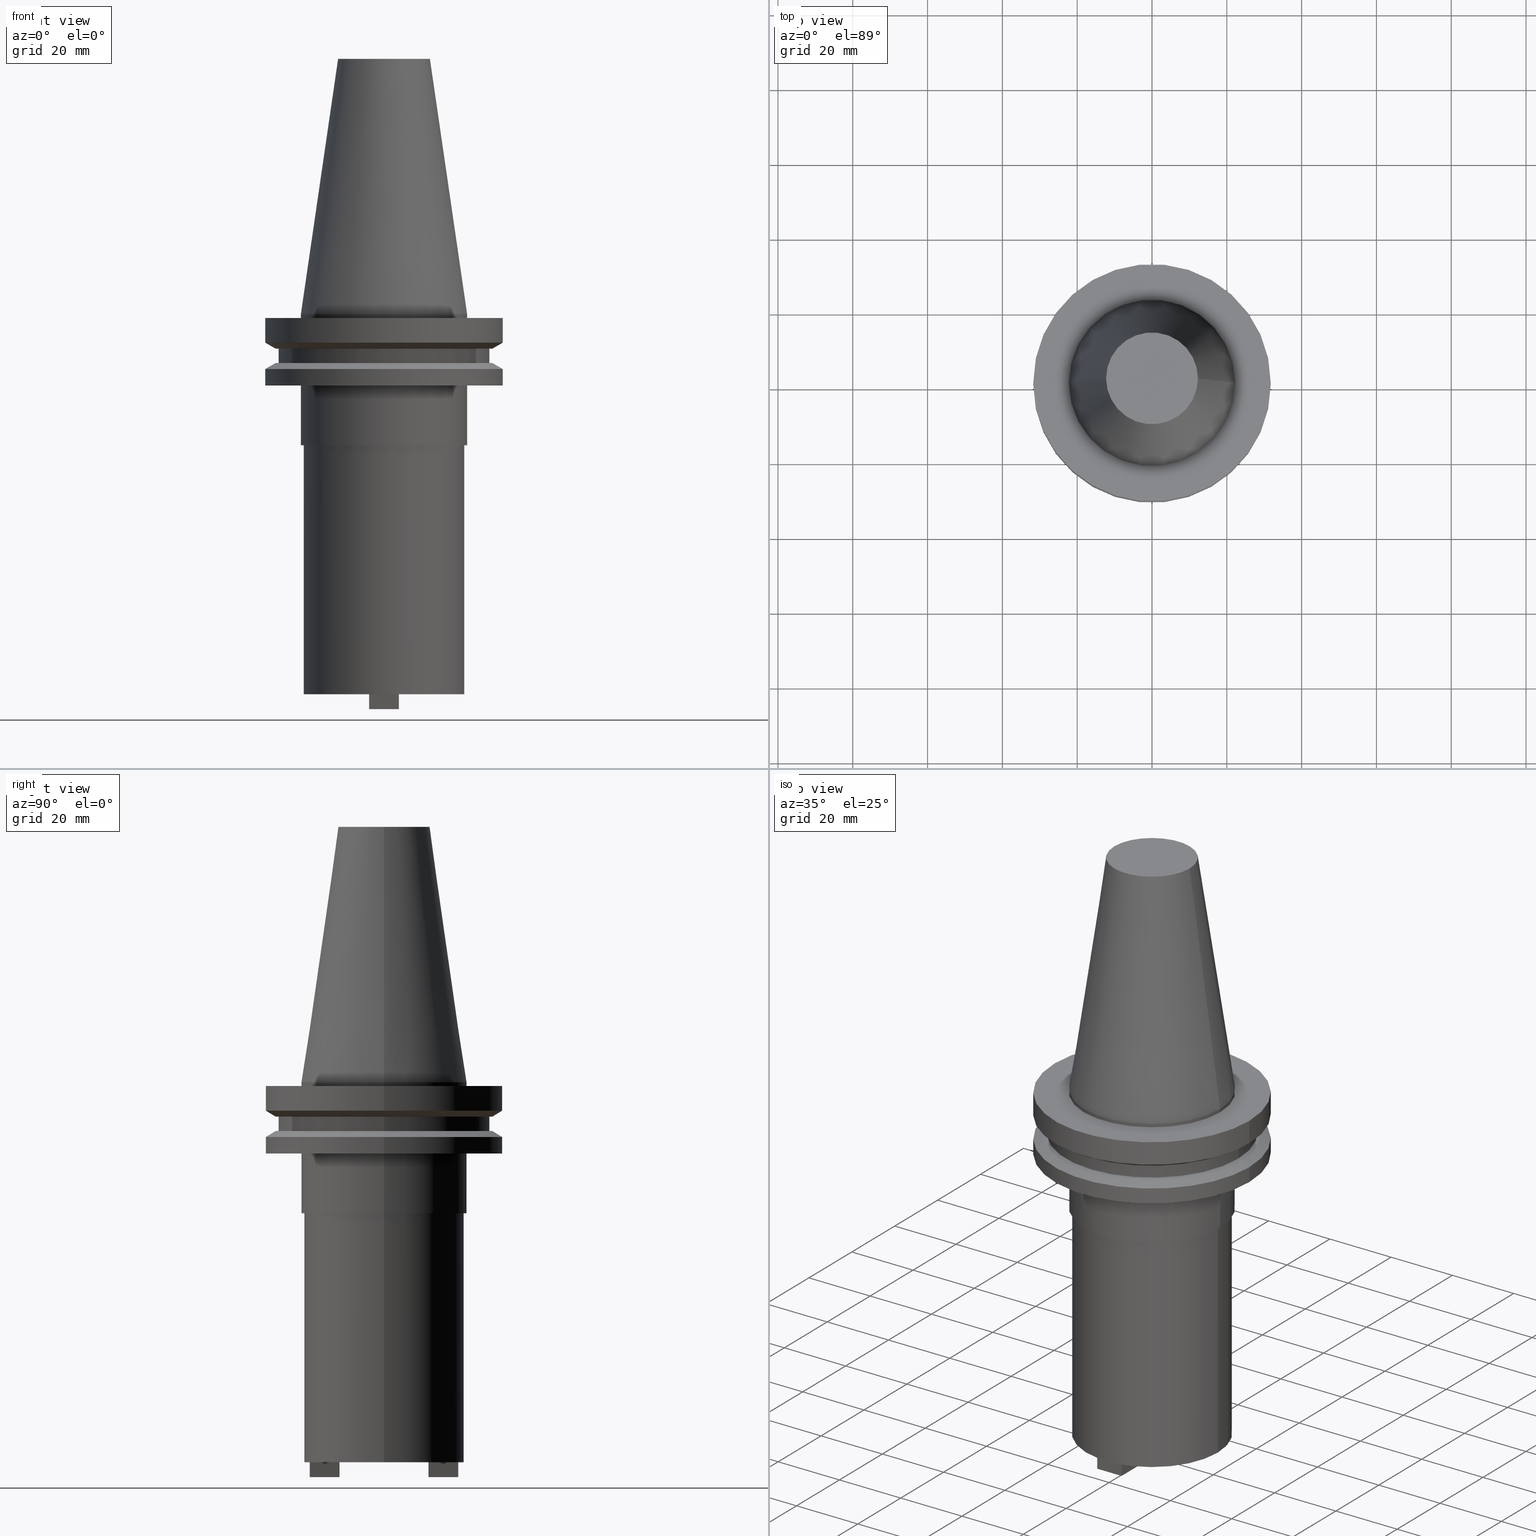
[diagram: canonical four-view strip — front | top / right | iso, engineering-drawing reading convention]
A machine part, canonical four-view strip (front | top / right | iso — engineering-drawing reading convention). The complete STEP part file that produces these views, byte-faithful:
ISO-10303-21;
HEADER;
FILE_DESCRIPTION (( 'STEP AP203' ),
    '1' );
FILE_NAME ('BCV40-SMC_750-4.STEP',
    '2022-02-25T14:57:40',
    ( '' ),
    ( '' ),
    'SwSTEP 2.0',
    'SolidWorks 2021',
    '' );
FILE_SCHEMA (( 'CONFIG_CONTROL_DESIGN' ));
ENDSEC;

DATA;
#1 = DATE_AND_TIME ( #886, #946 ) ;
#2 = AXIS2_PLACEMENT_3D ( 'NONE', #975, #65, #143 ) ;
#3 = VERTEX_POINT ( 'NONE', #944 ) ;
#4 = PRODUCT_DEFINITION_FORMATION_WITH_SPECIFIED_SOURCE ( 'ANY', '', #976, .NOT_KNOWN. ) ;
#5 = AXIS2_PLACEMENT_3D ( 'NONE', #313, #535, #330 ) ;
#6 = AXIS2_PLACEMENT_3D ( 'NONE', #1051, #133, #465 ) ;
#7 =( GEOMETRIC_REPRESENTATION_CONTEXT ( 3 ) GLOBAL_UNCERTAINTY_ASSIGNED_CONTEXT ( ( #880 ) ) GLOBAL_UNIT_ASSIGNED_CONTEXT ( ( #982, #235, #240 ) ) REPRESENTATION_CONTEXT ( 'NONE', 'WORKASPACE' ) );
#8 = LINE ( 'NONE', #740, #287 ) ;
#9 = ORIENTED_EDGE ( 'NONE', *, *, #193, .T. ) ;
#10 = ORIENTED_EDGE ( 'NONE', *, *, #42, .T. ) ;
#11 = DIRECTION ( 'NONE',  ( -0.000000000000000000, -0.000000000000000000, 1.000000000000000000 ) ) ;
#12 = DIRECTION ( 'NONE',  ( -0.000000000000000000, 1.000000000000000000, -0.000000000000000000 ) ) ;
#13 = ORIENTED_EDGE ( 'NONE', *, *, #779, .T. ) ;
#14 = CARTESIAN_POINT ( 'NONE',  ( 0.000000000000000000, 0.000000000000000000, -14.65472339340266572 ) ) ;
#15 = PERSON_AND_ORGANIZATION ( #775, #335 ) ;
#16 = ORIENTED_EDGE ( 'NONE', *, *, #802, .T. ) ;
#17 = ORIENTED_EDGE ( 'NONE', *, *, #937, .T. ) ;
#18 = CARTESIAN_POINT ( 'NONE',  ( 0.000000000000000000, 0.000000000000000000, 68.25000000000000000 ) ) ;
#19 = CC_DESIGN_SECURITY_CLASSIFICATION ( #399, ( #4 ) ) ;
#20 = AXIS2_PLACEMENT_3D ( 'NONE', #303, #870, #959 ) ;
#21 = CIRCLE ( 'NONE', #6, 4.215000000000001634 ) ;
#22 = DIRECTION ( 'NONE',  ( 1.000000000000000000, 0.000000000000000000, 0.000000000000000000 ) ) ;
#23 = DIRECTION ( 'NONE',  ( 1.000000000000000000, 0.000000000000000000, 0.000000000000000000 ) ) ;
#24 = ADVANCED_FACE ( 'NONE', ( #33 ), #110, .F. ) ;
#25 = ORIENTED_EDGE ( 'NONE', *, *, #245, .F. ) ;
#26 = EDGE_CURVE ( 'NONE', #236, #1079, #746, .T. ) ;
#27 = CARTESIAN_POINT ( 'NONE',  ( 4.215000000000006075, 0.000000000000000000, -101.5999999999999943 ) ) ;
#28 = DIRECTION ( 'NONE',  ( 1.000000000000000000, 0.000000000000000000, 0.000000000000000000 ) ) ;
#29 = EDGE_LOOP ( 'NONE', ( #651, #927 ) ) ;
#30 = ADVANCED_FACE ( 'NONE', ( #875 ), #963, .T. ) ;
#31 = ORIENTED_EDGE ( 'NONE', *, *, #700, .T. ) ;
#32 = DIRECTION ( 'NONE',  ( -0.000000000000000000, 1.000000000000000000, -0.000000000000000000 ) ) ;
#33 = FACE_OUTER_BOUND ( 'NONE', #283, .T. ) ;
#34 = EDGE_CURVE ( 'NONE', #752, #483, #529, .T. ) ;
#35 = CARTESIAN_POINT ( 'NONE',  ( -3.965000000000004299, 19.84000000000000341, -101.5999999999999943 ) ) ;
#36 = AXIS2_PLACEMENT_3D ( 'NONE', #221, #554, #885 ) ;
#37 = EDGE_CURVE ( 'NONE', #1079, #236, #795, .T. ) ;
#38 = CIRCLE ( 'NONE', #951, 31.74999999999999289 ) ;
#39 = DIRECTION ( 'NONE',  ( 1.000000000000000000, 0.000000000000000000, 0.000000000000000000 ) ) ;
#40 = EDGE_LOOP ( 'NONE', ( #536, #760, #905, #17 ) ) ;
#41 = CARTESIAN_POINT ( 'NONE',  ( 3.964999999999995417, 19.84000000000000341, -101.5999999999999943 ) ) ;
#42 = EDGE_CURVE ( 'NONE', #596, #3, #638, .T. ) ;
#43 = CARTESIAN_POINT ( 'NONE',  ( 0.000000000000000000, 0.000000000000000000, -19.04999999999999716 ) ) ;
#44 = CC_DESIGN_PERSON_AND_ORGANIZATION_ASSIGNMENT ( #15, #921, ( #4 ) ) ;
#45 = CARTESIAN_POINT ( 'NONE',  ( 3.964999999999995417, 11.91000000000000192, -105.5699999999999932 ) ) ;
#46 = FACE_BOUND ( 'NONE', #161, .T. ) ;
#47 = CARTESIAN_POINT ( 'NONE',  ( 0.000000000000000000, 0.000000000000000000, 68.25000000000000000 ) ) ;
#48 = DIRECTION ( 'NONE',  ( 0.000000000000000000, -0.000000000000000000, 1.000000000000000000 ) ) ;
#49 = ADVANCED_FACE ( 'NONE', ( #131 ), #379, .T. ) ;
#50 = DIRECTION ( 'NONE',  ( 1.000000000000000000, 0.000000000000000000, 0.000000000000000000 ) ) ;
#51 = VECTOR ( 'NONE', #650, 1000.000000000000000 ) ;
#52 = CYLINDRICAL_SURFACE ( 'NONE', #816, 28.17999999999999972 ) ;
#53 = VECTOR ( 'NONE', #224, 1000.000000000000000 ) ;
#54 = CARTESIAN_POINT ( 'NONE',  ( 0.000000000000000000, 0.000000000000000000, 68.25000000000000000 ) ) ;
#55 = AXIS2_PLACEMENT_3D ( 'NONE', #59, #805, #411 ) ;
#56 = ORIENTED_EDGE ( 'NONE', *, *, #363, .F. ) ;
#57 = CC_DESIGN_DATE_AND_TIME_ASSIGNMENT ( #325, #996, ( #707 ) ) ;
#58 = PLANE ( 'NONE',  #180 ) ;
#59 = CARTESIAN_POINT ( 'NONE',  ( 0.000000000000000000, 0.000000000000000000, -101.5999999999999943 ) ) ;
#60 = FACE_BOUND ( 'NONE', #877, .T. ) ;
#61 = FACE_OUTER_BOUND ( 'NONE', #658, .T. ) ;
#62 = VERTEX_POINT ( 'NONE', #293 ) ;
#63 = FACE_BOUND ( 'NONE', #430, .T. ) ;
#64 = DIRECTION ( 'NONE',  ( 1.000000000000000000, 0.000000000000000000, 0.000000000000000000 ) ) ;
#65 = DIRECTION ( 'NONE',  ( -0.000000000000000000, -0.000000000000000000, 1.000000000000000000 ) ) ;
#66 = VERTEX_POINT ( 'NONE', #698 ) ;
#67 = ORIENTED_EDGE ( 'NONE', *, *, #952, .F. ) ;
#68 = DIRECTION ( 'NONE',  ( -0.000000000000000000, -0.000000000000000000, 1.000000000000000000 ) ) ;
#69 = EDGE_CURVE ( 'NONE', #685, #597, #140, .T. ) ;
#70 = DIRECTION ( 'NONE',  ( -0.000000000000000000, -0.000000000000000000, 1.000000000000000000 ) ) ;
#71 = CARTESIAN_POINT ( 'NONE',  ( 0.000000000000000000, 0.000000000000000000, 0.000000000000000000 ) ) ;
#72 = AXIS2_PLACEMENT_3D ( 'NONE', #1020, #182, #22 ) ;
#73 = VERTEX_POINT ( 'NONE', #881 ) ;
#74 = ORIENTED_EDGE ( 'NONE', *, *, #171, .T. ) ;
#75 = VECTOR ( 'NONE', #378, 1000.000000000000000 ) ;
#76 = AXIS2_PLACEMENT_3D ( 'NONE', #733, #1080, #575 ) ;
#77 = VERTEX_POINT ( 'NONE', #466 ) ;
#78 = CARTESIAN_POINT ( 'NONE',  ( 0.000000000000000000, 0.000000000000000000, -9.205000000000005400 ) ) ;
#79 = CYLINDRICAL_SURFACE ( 'NONE', #640, 4.215000000000001634 ) ;
#80 = ADVANCED_FACE ( 'NONE', ( #210 ), #121, .F. ) ;
#81 = APPROVAL_STATUS ( 'not_yet_approved' ) ;
#82 = ORIENTED_EDGE ( 'NONE', *, *, #423, .T. ) ;
#83 = VERTEX_POINT ( 'NONE', #714 ) ;
#84 = DIRECTION ( 'NONE',  ( -0.000000000000000000, -0.000000000000000000, 1.000000000000000000 ) ) ;
#85 = CARTESIAN_POINT ( 'NONE',  ( 3.964999999999997193, -19.83999999999999631, -105.5699999999999932 ) ) ;
#86 = VERTEX_POINT ( 'NONE', #969 ) ;
#87 = ORIENTED_EDGE ( 'NONE', *, *, #864, .F. ) ;
#88 = EDGE_CURVE ( 'NONE', #583, #284, #247, .T. ) ;
#89 = CC_DESIGN_DATE_AND_TIME_ASSIGNMENT ( #842, #750, ( #399 ) ) ;
#90 = DIRECTION ( 'NONE',  ( -0.000000000000000000, -0.000000000000000000, 1.000000000000000000 ) ) ;
#91 = SECURITY_CLASSIFICATION_LEVEL ( 'unclassified' ) ;
#92 = EDGE_LOOP ( 'NONE', ( #176, #945, #10, #450 ) ) ;
#93 = ADVANCED_FACE ( 'NONE', ( #702 ), #387, .T. ) ;
#94 = ORIENTED_EDGE ( 'NONE', *, *, #282, .T. ) ;
#95 = AXIS2_PLACEMENT_3D ( 'NONE', #669, #563, #64 ) ;
#96 = CONICAL_SURFACE ( 'NONE', #857, 28.97919780457007732, 1.047197551196598297 ) ;
#97 = DIRECTION ( 'NONE',  ( 1.000000000000000000, 0.000000000000000000, 0.000000000000000000 ) ) ;
#98 = ORIENTED_EDGE ( 'NONE', *, *, #350, .T. ) ;
#99 = DIRECTION ( 'NONE',  ( 1.000000000000000000, 0.000000000000000000, 0.000000000000000000 ) ) ;
#100 = CARTESIAN_POINT ( 'NONE',  ( 0.000000000000000000, 0.000000000000000000, -1.000000000000000888 ) ) ;
#101 = CALENDAR_DATE ( 2022, 25, 2 ) ;
#102 = ORIENTED_EDGE ( 'NONE', *, *, #778, .T. ) ;
#103 = VERTEX_POINT ( 'NONE', #631 ) ;
#104 = DIRECTION ( 'NONE',  ( -0.000000000000000000, -0.000000000000000000, 1.000000000000000000 ) ) ;
#105 = ADVANCED_BREP_SHAPE_REPRESENTATION ( 'BCV40-SMC_750-4', ( #454, #783 ), #7 ) ;
#106 = EDGE_CURVE ( 'NONE', #196, #66, #216, .T. ) ;
#107 = DIRECTION ( 'NONE',  ( -1.000000000000000000, 0.000000000000000000, -0.000000000000000000 ) ) ;
#108 = EDGE_CURVE ( 'NONE', #248, #310, #1044, .T. ) ;
#109 = EDGE_LOOP ( 'NONE', ( #890, #723 ) ) ;
#110 = PLANE ( 'NONE',  #661 ) ;
#111 = VERTEX_POINT ( 'NONE', #694 ) ;
#112 = FACE_OUTER_BOUND ( 'NONE', #1022, .T. ) ;
#113 = CIRCLE ( 'NONE', #542, 4.215000000000001634 ) ;
#114 = CIRCLE ( 'NONE', #138, 22.22500000000000142 ) ;
#115 = FACE_OUTER_BOUND ( 'NONE', #769, .T. ) ;
#116 = VERTEX_POINT ( 'NONE', #470 ) ;
#117 = EDGE_LOOP ( 'NONE', ( #1035, #1005 ) ) ;
#118 = CARTESIAN_POINT ( 'NONE',  ( 3.964999999999995417, 11.91000000000000192, -101.5999999999999943 ) ) ;
#119 = ORIENTED_EDGE ( 'NONE', *, *, #721, .T. ) ;
#120 = DIRECTION ( 'NONE',  ( -0.000000000000000000, -0.000000000000000000, 1.000000000000000000 ) ) ;
#121 = PLANE ( 'NONE',  #626 ) ;
#122 = ORIENTED_EDGE ( 'NONE', *, *, #743, .F. ) ;
#123 = ADVANCED_FACE ( 'NONE', ( #793 ), #52, .T. ) ;
#124 = LINE ( 'NONE', #41, #75 ) ;
#125 = AXIS2_PLACEMENT_3D ( 'NONE', #780, #540, #866 ) ;
#126 = VECTOR ( 'NONE', #468, 1000.000000000000000 ) ;
#127 = CARTESIAN_POINT ( 'NONE',  ( 0.000000000000000000, 0.000000000000000000, -13.05499999999999794 ) ) ;
#128 = CARTESIAN_POINT ( 'NONE',  ( 0.000000000000000000, 0.000000000000000000, -9.204999999999991189 ) ) ;
#129 = DIRECTION ( 'NONE',  ( 1.000000000000000000, 0.000000000000000000, 0.000000000000000000 ) ) ;
#130 = FACE_OUTER_BOUND ( 'NONE', #117, .T. ) ;
#131 = FACE_OUTER_BOUND ( 'NONE', #573, .T. ) ;
#132 = FACE_OUTER_BOUND ( 'NONE', #807, .T. ) ;
#133 = DIRECTION ( 'NONE',  ( -0.000000000000000000, -0.000000000000000000, 1.000000000000000000 ) ) ;
#134 = DIRECTION ( 'NONE',  ( -0.000000000000000000, 1.000000000000000000, -0.000000000000000000 ) ) ;
#135 = EDGE_CURVE ( 'NONE', #596, #440, #950, .T. ) ;
#136 = LINE ( 'NONE', #770, #285 ) ;
#137 = DIRECTION ( 'NONE',  ( -0.1443082272672999711, 0.000000000000000000, -0.9895327864921755756 ) ) ;
#138 = AXIS2_PLACEMENT_3D ( 'NONE', #994, #1059, #301 ) ;
#139 = DIRECTION ( 'NONE',  ( 0.000000000000000000, 0.000000000000000000, -1.000000000000000000 ) ) ;
#140 = CIRCLE ( 'NONE', #929, 21.44999999999999929 ) ;
#141 = CARTESIAN_POINT ( 'NONE',  ( 22.22500000000000142, 2.721777511104992849E-15, 0.000000000000000000 ) ) ;
#142 = VECTOR ( 'NONE', #156, 1000.000000000000000 ) ;
#143 = DIRECTION ( 'NONE',  ( 1.000000000000000000, 0.000000000000000000, 0.000000000000000000 ) ) ;
#144 = VECTOR ( 'NONE', #923, 1000.000000000000000 ) ;
#145 = ORIENTED_EDGE ( 'NONE', *, *, #34, .T. ) ;
#146 = DIRECTION ( 'NONE',  ( 1.000000000000000000, 0.000000000000000000, 0.000000000000000000 ) ) ;
#147 = LINE ( 'NONE', #401, #353 ) ;
#148 = DIRECTION ( 'NONE',  ( -0.000000000000000000, -0.000000000000000000, 1.000000000000000000 ) ) ;
#149 = COORDINATED_UNIVERSAL_TIME_OFFSET ( 6, 0, .BEHIND. ) ;
#150 = ORIENTED_EDGE ( 'NONE', *, *, #979, .F. ) ;
#151 = DIRECTION ( 'NONE',  ( 1.000000000000000000, 0.000000000000000000, 0.000000000000000000 ) ) ;
#152 = CARTESIAN_POINT ( 'NONE',  ( 0.000000000000000000, 0.000000000000000000, 0.000000000000000000 ) ) ;
#153 = ORIENTED_EDGE ( 'NONE', *, *, #452, .T. ) ;
#154 = ORIENTED_EDGE ( 'NONE', *, *, #108, .F. ) ;
#155 = DIRECTION ( 'NONE',  ( -0.000000000000000000, -0.000000000000000000, 1.000000000000000000 ) ) ;
#156 = DIRECTION ( 'NONE',  ( 0.000000000000000000, -1.000000000000000000, 0.000000000000000000 ) ) ;
#157 = CARTESIAN_POINT ( 'NONE',  ( 3.964999999999997193, -11.90999999999999837, -105.5699999999999932 ) ) ;
#158 = CLOSED_SHELL ( 'NONE', ( #360, #888, #416, #936, #278, #123, #622, #1011, #1045, #1086, #537, #879, #1065, #364, #49, #577, #93, #319, #729, #592, #305, #472, #187, #169, #30, #526, #194, #24, #381, #80, #981, #974, #928, #811, #372, #297, #1030, #266 ) ) ;
#159 = CIRCLE ( 'NONE', #1026, 28.97919780457007732 ) ;
#160 = VECTOR ( 'NONE', #225, 1000.000000000000000 ) ;
#161 = EDGE_LOOP ( 'NONE', ( #456, #901 ) ) ;
#162 = DIRECTION ( 'NONE',  ( -0.000000000000000000, -0.000000000000000000, 1.000000000000000000 ) ) ;
#163 = CARTESIAN_POINT ( 'NONE',  ( 0.000000000000000000, 0.000000000000000000, 68.25000000000000000 ) ) ;
#164 = CARTESIAN_POINT ( 'NONE',  ( 22.22500000000000142, 0.000000000000000000, -1.000000000000000888 ) ) ;
#165 = ORIENTED_EDGE ( 'NONE', *, *, #695, .F. ) ;
#166 = VERTEX_POINT ( 'NONE', #141 ) ;
#167 = DIRECTION ( 'NONE',  ( -0.000000000000000000, -0.000000000000000000, 1.000000000000000000 ) ) ;
#168 = CARTESIAN_POINT ( 'NONE',  ( 0.000000000000000000, 0.000000000000000000, -35.04999999999999716 ) ) ;
#169 = ADVANCED_FACE ( 'NONE', ( #60, #391 ), #1067, .F. ) ;
#170 = ORIENTED_EDGE ( 'NONE', *, *, #617, .F. ) ;
#171 = EDGE_CURVE ( 'NONE', #834, #362, #270, .T. ) ;
#172 = ORIENTED_EDGE ( 'NONE', *, *, #671, .T. ) ;
#173 = CARTESIAN_POINT ( 'NONE',  ( 31.75000000000000000, 0.000000000000000000, -14.65472339340266572 ) ) ;
#174 = CYLINDRICAL_SURFACE ( 'NONE', #796, 22.22500000000000142 ) ;
#175 = PERSON_AND_ORGANIZATION ( #775, #335 ) ;
#176 = ORIENTED_EDGE ( 'NONE', *, *, #1057, .F. ) ;
#177 = ORIENTED_EDGE ( 'NONE', *, *, #276, .T. ) ;
#178 = VERTEX_POINT ( 'NONE', #234 ) ;
#179 = VECTOR ( 'NONE', #148, 1000.000000000000000 ) ;
#180 = AXIS2_PLACEMENT_3D ( 'NONE', #1038, #200, #534 ) ;
#181 = VECTOR ( 'NONE', #625, 1000.000000000000000 ) ;
#182 = DIRECTION ( 'NONE',  ( 0.000000000000000000, -0.000000000000000000, 1.000000000000000000 ) ) ;
#183 = APPROVAL_STATUS ( 'not_yet_approved' ) ;
#184 = VERTEX_POINT ( 'NONE', #157 ) ;
#185 = ORIENTED_EDGE ( 'NONE', *, *, #743, .T. ) ;
#186 = PLANE ( 'NONE',  #386 ) ;
#187 = ADVANCED_FACE ( 'NONE', ( #566 ), #324, .T. ) ;
#188 = DIRECTION ( 'NONE',  ( -1.000000000000000000, 0.000000000000000000, 0.000000000000000000 ) ) ;
#189 = EDGE_LOOP ( 'NONE', ( #460, #408, #922, #567 ) ) ;
#190 = VERTEX_POINT ( 'NONE', #85 ) ;
#191 = LINE ( 'NONE', #1046, #302 ) ;
#192 = CARTESIAN_POINT ( 'NONE',  ( 3.964999999999995417, 19.84000000000000341, -101.5999999999999943 ) ) ;
#193 = EDGE_CURVE ( 'NONE', #362, #834, #612, .T. ) ;
#194 = ADVANCED_FACE ( 'NONE', ( #735 ), #79, .F. ) ;
#195 = COORDINATED_UNIVERSAL_TIME_OFFSET ( 6, 0, .BEHIND. ) ;
#196 = VERTEX_POINT ( 'NONE', #412 ) ;
#197 = AXIS2_PLACEMENT_3D ( 'NONE', #689, #933, #528 ) ;
#198 = CARTESIAN_POINT ( 'NONE',  ( -28.97919780457007732, 3.718590885307660666E-15, -9.205000000000005400 ) ) ;
#199 = ORIENTED_EDGE ( 'NONE', *, *, #812, .T. ) ;
#200 = DIRECTION ( 'NONE',  ( 0.000000000000000000, -0.000000000000000000, 1.000000000000000000 ) ) ;
#201 = ORIENTED_EDGE ( 'NONE', *, *, #202, .T. ) ;
#202 = EDGE_CURVE ( 'NONE', #86, #998, #420, .T. ) ;
#203 = LINE ( 'NONE', #539, #475 ) ;
#204 = DIRECTION ( 'NONE',  ( 0.000000000000000000, 0.000000000000000000, -1.000000000000000000 ) ) ;
#205 = CARTESIAN_POINT ( 'NONE',  ( 3.964999999999997193, -19.83999999999999631, -105.5699999999999932 ) ) ;
#206 = ORIENTED_EDGE ( 'NONE', *, *, #706, .F. ) ;
#207 = VECTOR ( 'NONE', #356, 1000.000000000000000 ) ;
#208 = CARTESIAN_POINT ( 'NONE',  ( -31.74999999999999289, 3.888253587292845687E-15, -19.04999999999999716 ) ) ;
#209 = VECTOR ( 'NONE', #855, 1000.000000000000000 ) ;
#210 = FACE_OUTER_BOUND ( 'NONE', #1033, .T. ) ;
#211 = DIRECTION ( 'NONE',  ( -0.000000000000000000, 0.000000000000000000, 1.000000000000000000 ) ) ;
#212 = EDGE_CURVE ( 'NONE', #116, #777, #1082, .T. ) ;
#213 = DIRECTION ( 'NONE',  ( 1.000000000000000000, 0.000000000000000000, 0.000000000000000000 ) ) ;
#214 = EDGE_CURVE ( 'NONE', #583, #737, #894, .T. ) ;
#215 = DIRECTION ( 'NONE',  ( -0.000000000000000000, -0.000000000000000000, 1.000000000000000000 ) ) ;
#216 = LINE ( 'NONE', #546, #1052 ) ;
#217 = CARTESIAN_POINT ( 'NONE',  ( 31.75000000000000000, 0.000000000000000000, -1.000000000000000888 ) ) ;
#218 = ORIENTED_EDGE ( 'NONE', *, *, #538, .T. ) ;
#219 = CARTESIAN_POINT ( 'NONE',  ( -31.75000000000000000, 3.888253587292846476E-15, -7.605276606597335842 ) ) ;
#220 = PLANE ( 'NONE',  #797 ) ;
#221 = CARTESIAN_POINT ( 'NONE',  ( 0.000000000000000000, 0.000000000000000000, -13.05499999999999794 ) ) ;
#222 = CARTESIAN_POINT ( 'NONE',  ( 0.000000000000000000, 0.000000000000000000, -1.000000000000000888 ) ) ;
#223 = ORIENTED_EDGE ( 'NONE', *, *, #290, .T. ) ;
#224 = DIRECTION ( 'NONE',  ( -1.000000000000000000, -8.750181467726642358E-16, 0.000000000000000000 ) ) ;
#225 = DIRECTION ( 'NONE',  ( -0.000000000000000000, -0.000000000000000000, 1.000000000000000000 ) ) ;
#226 = AXIS2_PLACEMENT_3D ( 'NONE', #913, #720, #1002 ) ;
#227 = DIRECTION ( 'NONE',  ( -0.000000000000000000, -0.000000000000000000, 1.000000000000000000 ) ) ;
#228 = EDGE_CURVE ( 'NONE', #513, #1019, #298, .T. ) ;
#229 = VECTOR ( 'NONE', #883, 1000.000000000000000 ) ;
#230 = CARTESIAN_POINT ( 'NONE',  ( 31.75000000000000000, 3.888253587292846476E-15, -14.65472339340266572 ) ) ;
#231 = AXIS2_PLACEMENT_3D ( 'NONE', #18, #467, #789 ) ;
#232 = EDGE_CURVE ( 'NONE', #178, #991, #507, .T. ) ;
#233 = CARTESIAN_POINT ( 'NONE',  ( 3.964999999999997193, -11.90999999999999837, -105.5699999999999932 ) ) ;
#234 = CARTESIAN_POINT ( 'NONE',  ( 31.75000000000000000, 0.000000000000000000, -7.605276606597335842 ) ) ;
#235 =( NAMED_UNIT ( * ) PLANE_ANGLE_UNIT ( ) SI_UNIT ( $, .RADIAN. ) );
#236 = VERTEX_POINT ( 'NONE', #424 ) ;
#237 = EDGE_CURVE ( 'NONE', #503, #3, #246, .T. ) ;
#238 = CARTESIAN_POINT ( 'NONE',  ( 0.000000000000000000, 0.000000000000000000, -14.65472339340266572 ) ) ;
#239 = FACE_OUTER_BOUND ( 'NONE', #344, .T. ) ;
#240 =( NAMED_UNIT ( * ) SI_UNIT ( $, .STERADIAN. ) SOLID_ANGLE_UNIT ( ) );
#241 = ORIENTED_EDGE ( 'NONE', *, *, #910, .F. ) ;
#242 = ORIENTED_EDGE ( 'NONE', *, *, #947, .T. ) ;
#243 = PLANE ( 'NONE',  #615 ) ;
#244 = DIRECTION ( 'NONE',  ( 0.000000000000000000, -1.000000000000000000, 0.000000000000000000 ) ) ;
#245 = EDGE_CURVE ( 'NONE', #918, #505, #403, .T. ) ;
#246 = LINE ( 'NONE', #494, #491 ) ;
#247 = CIRCLE ( 'NONE', #763, 28.17999999999999972 ) ;
#248 = VERTEX_POINT ( 'NONE', #995 ) ;
#249 = EDGE_LOOP ( 'NONE', ( #119, #843, #676, #916 ) ) ;
#250 = CIRCLE ( 'NONE', #705, 22.22500000000000142 ) ;
#251 = CIRCLE ( 'NONE', #744, 31.75000000000000000 ) ;
#252 = ORIENTED_EDGE ( 'NONE', *, *, #700, .F. ) ;
#253 = DIRECTION ( 'NONE',  ( -0.000000000000000000, -0.000000000000000000, 1.000000000000000000 ) ) ;
#254 = CARTESIAN_POINT ( 'NONE',  ( 0.000000000000000000, 0.000000000000000000, -9.205000000000005400 ) ) ;
#255 = ORIENTED_EDGE ( 'NONE', *, *, #662, .T. ) ;
#256 = ORIENTED_EDGE ( 'NONE', *, *, #864, .T. ) ;
#257 = CARTESIAN_POINT ( 'NONE',  ( -3.965000000000004299, -11.90999999999999837, -105.5699999999999932 ) ) ;
#258 = APPROVAL_ROLE ( '' ) ;
#259 = ORIENTED_EDGE ( 'NONE', *, *, #135, .T. ) ;
#260 = VERTEX_POINT ( 'NONE', #164 ) ;
#261 = EDGE_LOOP ( 'NONE', ( #274, #1036, #861, #515 ) ) ;
#262 = FACE_OUTER_BOUND ( 'NONE', #109, .T. ) ;
#263 = CARTESIAN_POINT ( 'NONE',  ( 3.964999999999997193, -19.83999999999999631, -105.5699999999999932 ) ) ;
#264 = SHAPE_DEFINITION_REPRESENTATION ( #801, #105 ) ;
#265 = EDGE_LOOP ( 'NONE', ( #853, #150, #332, #242 ) ) ;
#266 = ADVANCED_FACE ( 'NONE', ( #239 ), #571, .T. ) ;
#267 = APPROVAL_PERSON_ORGANIZATION ( #1013, #601, #258 ) ;
#268 = AXIS2_PLACEMENT_3D ( 'NONE', #254, #586, #920 ) ;
#269 = ORIENTED_EDGE ( 'NONE', *, *, #237, .F. ) ;
#270 = CIRCLE ( 'NONE', #578, 21.44999999999999929 ) ;
#271 = CIRCLE ( 'NONE', #300, 31.75000000000000000 ) ;
#272 = LINE ( 'NONE', #347, #207 ) ;
#273 = PERSON_AND_ORGANIZATION_ROLE ( 'creator' ) ;
#274 = ORIENTED_EDGE ( 'NONE', *, *, #202, .F. ) ;
#275 = DIRECTION ( 'NONE',  ( 0.000000000000000000, 1.000000000000000000, 0.000000000000000000 ) ) ;
#276 = EDGE_CURVE ( 'NONE', #610, #178, #8, .T. ) ;
#277 = EDGE_CURVE ( 'NONE', #956, #991, #558, .T. ) ;
#278 = ADVANCED_FACE ( 'NONE', ( #1012 ), #838, .T. ) ;
#279 = PLANE ( 'NONE',  #337 ) ;
#280 = ORIENTED_EDGE ( 'NONE', *, *, #605, .F. ) ;
#281 = PLANE ( 'NONE',  #818 ) ;
#282 = EDGE_CURVE ( 'NONE', #483, #752, #869, .T. ) ;
#283 = EDGE_LOOP ( 'NONE', ( #934, #756 ) ) ;
#284 = VERTEX_POINT ( 'NONE', #396 ) ;
#285 = VECTOR ( 'NONE', #604, 1000.000000000000000 ) ;
#286 = CC_DESIGN_APPROVAL ( #479, ( #4 ) ) ;
#287 = VECTOR ( 'NONE', #341, 1000.000000000000000 ) ;
#288 = VECTOR ( 'NONE', #162, 1000.000000000000000 ) ;
#289 = CARTESIAN_POINT ( 'NONE',  ( 0.000000000000000000, 0.000000000000000000, -13.05499999999999794 ) ) ;
#290 = EDGE_CURVE ( 'NONE', #260, #86, #400, .T. ) ;
#291 = DIRECTION ( 'NONE',  ( -0.000000000000000000, -0.000000000000000000, 1.000000000000000000 ) ) ;
#292 = FACE_OUTER_BOUND ( 'NONE', #997, .T. ) ;
#293 = CARTESIAN_POINT ( 'NONE',  ( -28.17999999999999972, 3.451054679997241634E-15, -9.204999999999991189 ) ) ;
#294 = CARTESIAN_POINT ( 'NONE',  ( 0.000000000000000000, 0.000000000000000000, -105.5699999999999932 ) ) ;
#295 = CARTESIAN_POINT ( 'NONE',  ( 0.000000000000000000, 0.000000000000000000, -9.205000000000005400 ) ) ;
#296 = DIRECTION ( 'NONE',  ( -0.000000000000000000, -0.000000000000000000, 1.000000000000000000 ) ) ;
#297 = ADVANCED_FACE ( 'NONE', ( #683 ), #517, .F. ) ;
#298 = CIRCLE ( 'NONE', #427, 12.27178102086201150 ) ;
#299 = CARTESIAN_POINT ( 'NONE',  ( 0.000000000000000000, 0.000000000000000000, -19.04999999999999716 ) ) ;
#300 = AXIS2_PLACEMENT_3D ( 'NONE', #734, #253, #810 ) ;
#301 = DIRECTION ( 'NONE',  ( 1.000000000000000000, 0.000000000000000000, 0.000000000000000000 ) ) ;
#302 = VECTOR ( 'NONE', #699, 1000.000000000000000 ) ;
#303 = CARTESIAN_POINT ( 'NONE',  ( 0.000000000000000000, 0.000000000000000000, -35.04999999999999716 ) ) ;
#304 = DIRECTION ( 'NONE',  ( -1.000000000000000000, 0.000000000000000000, -0.000000000000000000 ) ) ;
#305 = ADVANCED_FACE ( 'NONE', ( #948, #762 ), #600, .F. ) ;
#306 = CARTESIAN_POINT ( 'NONE',  ( -31.75000000000000000, 3.888253587292846476E-15, 68.25000000000000000 ) ) ;
#307 = CARTESIAN_POINT ( 'NONE',  ( -28.17999999999999972, 3.451054679997241634E-15, 68.25000000000000000 ) ) ;
#308 = CARTESIAN_POINT ( 'NONE',  ( -3.965000000000004299, -11.90999999999999837, -101.5999999999999943 ) ) ;
#309 = CARTESIAN_POINT ( 'NONE',  ( 3.964999999999997193, -19.83999999999999631, -105.5699999999999932 ) ) ;
#310 = VERTEX_POINT ( 'NONE', #849 ) ;
#311 = DIRECTION ( 'NONE',  ( -1.000000000000000000, 0.000000000000000000, -0.000000000000000000 ) ) ;
#312 = CARTESIAN_POINT ( 'NONE',  ( 3.964999999999997193, -11.90999999999999837, -105.5699999999999932 ) ) ;
#313 = CARTESIAN_POINT ( 'NONE',  ( 0.000000000000000000, 31.75000000000000000, -0.9999999999999995559 ) ) ;
#314 = DIRECTION ( 'NONE',  ( 1.000000000000000000, 0.000000000000000000, 0.000000000000000000 ) ) ;
#315 = FACE_OUTER_BOUND ( 'NONE', #487, .T. ) ;
#316 = VECTOR ( 'NONE', #134, 1000.000000000000000 ) ;
#317 = CARTESIAN_POINT ( 'NONE',  ( 0.000000000000000000, 0.000000000000000000, -35.04999999999999716 ) ) ;
#318 = CIRCLE ( 'NONE', #690, 31.74999999999999289 ) ;
#319 = ADVANCED_FACE ( 'NONE', ( #758 ), #351, .T. ) ;
#320 = PERSON_AND_ORGANIZATION ( #775, #335 ) ;
#321 = ORIENTED_EDGE ( 'NONE', *, *, #670, .T. ) ;
#322 = EDGE_LOOP ( 'NONE', ( #486, #451, #687, #1050 ) ) ;
#323 = CARTESIAN_POINT ( 'NONE',  ( -21.44999999999999929, 2.626867384171072557E-15, -101.5999999999999943 ) ) ;
#324 = CYLINDRICAL_SURFACE ( 'NONE', #226, 31.75000000000000000 ) ;
#325 = DATE_AND_TIME ( #1077, #473 ) ;
#326 = EDGE_LOOP ( 'NONE', ( #82, #1074, #352, #488 ) ) ;
#327 = EDGE_LOOP ( 'NONE', ( #847, #16, #252, #926 ) ) ;
#328 = LINE ( 'NONE', #907, #288 ) ;
#329 = DIRECTION ( 'NONE',  ( 1.000000000000000000, 0.000000000000000000, 0.000000000000000000 ) ) ;
#330 = DIRECTION ( 'NONE',  ( -1.000000000000000000, 0.000000000000000000, -0.000000000000000000 ) ) ;
#331 = ORIENTED_EDGE ( 'NONE', *, *, #1000, .F. ) ;
#332 = ORIENTED_EDGE ( 'NONE', *, *, #545, .F. ) ;
#333 = DIRECTION ( 'NONE',  ( -0.000000000000000000, -0.000000000000000000, 1.000000000000000000 ) ) ;
#334 = DIRECTION ( 'NONE',  ( -0.000000000000000000, -0.000000000000000000, 1.000000000000000000 ) ) ;
#335 = ORGANIZATION ( 'UNSPECIFIED', 'UNSPECIFIED', '' ) ;
#336 = AXIS2_PLACEMENT_3D ( 'NONE', #43, #376, #476 ) ;
#337 = AXIS2_PLACEMENT_3D ( 'NONE', #525, #606, #942 ) ;
#338 = VECTOR ( 'NONE', #727, 1000.000000000000000 ) ;
#339 = ORIENTED_EDGE ( 'NONE', *, *, #718, .F. ) ;
#340 = DIRECTION ( 'NONE',  ( 1.000000000000000000, -0.000000000000000000, -0.000000000000000000 ) ) ;
#341 = DIRECTION ( 'NONE',  ( 0.8660254037844389297, 0.000000000000000000, 0.4999999999999995004 ) ) ;
#342 = EDGE_LOOP ( 'NONE', ( #1018, #533, #940, #67 ) ) ;
#343 = ORIENTED_EDGE ( 'NONE', *, *, #648, .T. ) ;
#344 = EDGE_LOOP ( 'NONE', ( #724, #98, #321, #677 ) ) ;
#345 = DIRECTION ( 'NONE',  ( 0.000000000000000000, 0.000000000000000000, -1.000000000000000000 ) ) ;
#346 = ORIENTED_EDGE ( 'NONE', *, *, #108, .T. ) ;
#347 = CARTESIAN_POINT ( 'NONE',  ( 3.964999999999997193, -11.90999999999999837, -105.5699999999999932 ) ) ;
#348 = COORDINATED_UNIVERSAL_TIME_OFFSET ( 6, 0, .BEHIND. ) ;
#349 = ORIENTED_EDGE ( 'NONE', *, *, #245, .T. ) ;
#350 = EDGE_CURVE ( 'NONE', #73, #184, #272, .T. ) ;
#351 = CONICAL_SURFACE ( 'NONE', #962, 31.75000000000000000, 1.047197551196597853 ) ;
#352 = ORIENTED_EDGE ( 'NONE', *, *, #914, .F. ) ;
#353 = VECTOR ( 'NONE', #821, 999.9999999999998863 ) ;
#354 = FACE_OUTER_BOUND ( 'NONE', #666, .T. ) ;
#355 = VECTOR ( 'NONE', #377, 1000.000000000000000 ) ;
#356 = DIRECTION ( 'NONE',  ( 1.000000000000000000, -0.000000000000000000, -0.000000000000000000 ) ) ;
#357 = ORIENTED_EDGE ( 'NONE', *, *, #1064, .T. ) ;
#358 = VERTEX_POINT ( 'NONE', #198 ) ;
#359 = CARTESIAN_POINT ( 'NONE',  ( 3.964999999999995417, 19.84000000000000341, -105.5699999999999932 ) ) ;
#360 = ADVANCED_FACE ( 'NONE', ( #365 ), #442, .F. ) ;
#361 = LINE ( 'NONE', #118, #514 ) ;
#362 = VERTEX_POINT ( 'NONE', #938 ) ;
#363 = EDGE_CURVE ( 'NONE', #83, #837, #361, .T. ) ;
#364 = ADVANCED_FACE ( 'NONE', ( #520 ), #281, .F. ) ;
#365 = FACE_OUTER_BOUND ( 'NONE', #1015, .T. ) ;
#366 = DIRECTION ( 'NONE',  ( 0.000000000000000000, -0.000000000000000000, 1.000000000000000000 ) ) ;
#367 = ORIENTED_EDGE ( 'NONE', *, *, #967, .F. ) ;
#368 = CIRCLE ( 'NONE', #1054, 28.17999999999999972 ) ;
#369 = AXIS2_PLACEMENT_3D ( 'NONE', #54, #388, #882 ) ;
#370 = CARTESIAN_POINT ( 'NONE',  ( 0.000000000000000000, 0.000000000000000000, -9.205000000000005400 ) ) ;
#371 = CARTESIAN_POINT ( 'NONE',  ( 3.964999999999995417, 19.84000000000000341, -105.5699999999999932 ) ) ;
#372 = ADVANCED_FACE ( 'NONE', ( #1032 ), #279, .F. ) ;
#373 = CC_DESIGN_PERSON_AND_ORGANIZATION_ASSIGNMENT ( #175, #602, ( #399 ) ) ;
#374 = CARTESIAN_POINT ( 'NONE',  ( 4.215000000000001634, 0.000000000000000000, -35.04999999999999716 ) ) ;
#375 = EDGE_CURVE ( 'NONE', #587, #83, #931, .T. ) ;
#376 = DIRECTION ( 'NONE',  ( -0.000000000000000000, -0.000000000000000000, 1.000000000000000000 ) ) ;
#377 = DIRECTION ( 'NONE',  ( -0.000000000000000000, -0.000000000000000000, 1.000000000000000000 ) ) ;
#378 = DIRECTION ( 'NONE',  ( 1.000000000000000000, -0.000000000000000000, -0.000000000000000000 ) ) ;
#379 = CYLINDRICAL_SURFACE ( 'NONE', #125, 22.22500000000000142 ) ;
#380 = CARTESIAN_POINT ( 'NONE',  ( 12.27178102086201150, 2.112318622904291439E-15, 68.25000000000000000 ) ) ;
#381 = ADVANCED_FACE ( 'NONE', ( #115 ), #924, .F. ) ;
#382 = LOCAL_TIME ( 8, 57, 40.00000000000000000, #438 ) ;
#383 = VECTOR ( 'NONE', #822, 1000.000000000000000 ) ;
#384 = DIRECTION ( 'NONE',  ( 1.000000000000000000, 0.000000000000000000, 0.000000000000000000 ) ) ;
#385 = AXIS2_PLACEMENT_3D ( 'NONE', #697, #787, #384 ) ;
#386 = AXIS2_PLACEMENT_3D ( 'NONE', #309, #551, #935 ) ;
#387 = CYLINDRICAL_SURFACE ( 'NONE', #704, 31.75000000000000000 ) ;
#388 = DIRECTION ( 'NONE',  ( -0.000000000000000000, -0.000000000000000000, 1.000000000000000000 ) ) ;
#389 = DIRECTION ( 'NONE',  ( -0.000000000000000000, -0.000000000000000000, 1.000000000000000000 ) ) ;
#390 = LINE ( 'NONE', #312, #160 ) ;
#391 = FACE_OUTER_BOUND ( 'NONE', #867, .T. ) ;
#392 = DIRECTION ( 'NONE',  ( 0.000000000000000000, 0.000000000000000000, 1.000000000000000000 ) ) ;
#393 = CARTESIAN_POINT ( 'NONE',  ( 3.964999999999995417, 19.84000000000000341, -101.5999999999999943 ) ) ;
#394 = EDGE_CURVE ( 'NONE', #837, #457, #609, .T. ) ;
#395 = DIRECTION ( 'NONE',  ( -0.000000000000000000, -0.000000000000000000, 1.000000000000000000 ) ) ;
#396 = CARTESIAN_POINT ( 'NONE',  ( -28.17999999999999972, 3.451054679997241634E-15, -13.05499999999999794 ) ) ;
#397 = DIRECTION ( 'NONE',  ( -0.000000000000000000, -0.000000000000000000, 1.000000000000000000 ) ) ;
#398 = LINE ( 'NONE', #506, #930 ) ;
#399 = SECURITY_CLASSIFICATION ( '', '', #91 ) ;
#400 = CIRCLE ( 'NONE', #1024, 22.22500000000000142 ) ;
#401 = CARTESIAN_POINT ( 'NONE',  ( 22.22500000000000142, 2.721777511104992849E-15, 0.000000000000000000 ) ) ;
#402 = VECTOR ( 'NONE', #827, 1000.000000000000000 ) ;
#403 = LINE ( 'NONE', #656, #51 ) ;
#404 = CIRCLE ( 'NONE', #1025, 12.27178102086201150 ) ;
#405 = APPLICATION_PROTOCOL_DEFINITION ( 'international standard', 'config_control_design', 1994, #791 ) ;
#406 = EDGE_LOOP ( 'NONE', ( #418, #339 ) ) ;
#407 = ORIENTED_EDGE ( 'NONE', *, *, #721, .F. ) ;
#408 = ORIENTED_EDGE ( 'NONE', *, *, #478, .T. ) ;
#409 = DIRECTION ( 'NONE',  ( 1.000000000000000000, 0.000000000000000000, 0.000000000000000000 ) ) ;
#410 = FACE_OUTER_BOUND ( 'NONE', #509, .T. ) ;
#411 = DIRECTION ( 'NONE',  ( 1.000000000000000000, 0.000000000000000000, 0.000000000000000000 ) ) ;
#412 = CARTESIAN_POINT ( 'NONE',  ( 3.964999999999995417, 11.91000000000000192, -105.5699999999999932 ) ) ;
#413 = EDGE_CURVE ( 'NONE', #825, #73, #1016, .T. ) ;
#414 = APPROVAL_STATUS ( 'not_yet_approved' ) ;
#415 = EDGE_LOOP ( 'NONE', ( #145, #94 ) ) ;
#416 = ADVANCED_FACE ( 'NONE', ( #432 ), #174, .T. ) ;
#417 = EDGE_CURVE ( 'NONE', #190, #825, #754, .T. ) ;
#418 = ORIENTED_EDGE ( 'NONE', *, *, #423, .F. ) ;
#419 = DIRECTION ( 'NONE',  ( -0.000000000000000000, -0.000000000000000000, 1.000000000000000000 ) ) ;
#420 = LINE ( 'NONE', #728, #179 ) ;
#421 = EDGE_LOOP ( 'NONE', ( #593, #732, #349, #831 ) ) ;
#422 = LINE ( 'NONE', #654, #628 ) ;
#423 = EDGE_CURVE ( 'NONE', #610, #358, #159, .T. ) ;
#424 = CARTESIAN_POINT ( 'NONE',  ( -22.22499999999999787, 2.721777511104992454E-15, -35.04999999999999716 ) ) ;
#425 = VECTOR ( 'NONE', #104, 1000.000000000000000 ) ;
#426 = CALENDAR_DATE ( 2022, 25, 2 ) ;
#427 = AXIS2_PLACEMENT_3D ( 'NONE', #1076, #748, #579 ) ;
#428 = ORIENTED_EDGE ( 'NONE', *, *, #106, .F. ) ;
#429 = ORIENTED_EDGE ( 'NONE', *, *, #910, .T. ) ;
#430 = EDGE_LOOP ( 'NONE', ( #569, #588 ) ) ;
#431 = EDGE_CURVE ( 'NONE', #503, #77, #38, .T. ) ;
#432 = FACE_OUTER_BOUND ( 'NONE', #782, .T. ) ;
#433 = ORIENTED_EDGE ( 'NONE', *, *, #947, .F. ) ;
#434 = ORIENTED_EDGE ( 'NONE', *, *, #538, .F. ) ;
#435 = FACE_OUTER_BOUND ( 'NONE', #872, .T. ) ;
#436 = CARTESIAN_POINT ( 'NONE',  ( 3.964999999999997193, -11.90999999999999837, -105.5699999999999932 ) ) ;
#437 = EDGE_CURVE ( 'NONE', #513, #998, #632, .T. ) ;
#438 = COORDINATED_UNIVERSAL_TIME_OFFSET ( 6, 0, .BEHIND. ) ;
#439 = ORIENTED_EDGE ( 'NONE', *, *, #375, .F. ) ;
#440 = VERTEX_POINT ( 'NONE', #972 ) ;
#441 = DIRECTION ( 'NONE',  ( 1.000000000000000000, 0.000000000000000000, 0.000000000000000000 ) ) ;
#442 = CYLINDRICAL_SURFACE ( 'NONE', #560, 4.215000000000001634 ) ;
#443 = VECTOR ( 'NONE', #634, 1000.000000000000000 ) ;
#444 = ORIENTED_EDGE ( 'NONE', *, *, #34, .F. ) ;
#445 = AXIS2_PLACEMENT_3D ( 'NONE', #238, #641, #897 ) ;
#446 = LINE ( 'NONE', #45, #355 ) ;
#447 = CIRCLE ( 'NONE', #531, 28.17999999999999972 ) ;
#448 = PRODUCT_RELATED_PRODUCT_CATEGORY ( 'detail', '', ( #976 ) ) ;
#449 = CARTESIAN_POINT ( 'NONE',  ( -3.965000000000004299, 19.84000000000000341, -105.5699999999999932 ) ) ;
#450 = ORIENTED_EDGE ( 'NONE', *, *, #832, .T. ) ;
#451 = ORIENTED_EDGE ( 'NONE', *, *, #228, .F. ) ;
#452 = EDGE_CURVE ( 'NONE', #440, #596, #598, .T. ) ;
#453 = CC_DESIGN_PERSON_AND_ORGANIZATION_ASSIGNMENT ( #800, #899, ( #707 ) ) ;
#454 = MANIFOLD_SOLID_BREP ( 'SQ', #158 ) ;
#455 = CARTESIAN_POINT ( 'NONE',  ( 0.000000000000000000, 12.27178102086201150, 68.25000000000000000 ) ) ;
#456 = ORIENTED_EDGE ( 'NONE', *, *, #896, .T. ) ;
#457 = VERTEX_POINT ( 'NONE', #35 ) ;
#458 = DIRECTION ( 'NONE',  ( 1.000000000000000000, 0.000000000000000000, 0.000000000000000000 ) ) ;
#459 = DIRECTION ( 'NONE',  ( -0.000000000000000000, -0.000000000000000000, 1.000000000000000000 ) ) ;
#460 = ORIENTED_EDGE ( 'NONE', *, *, #914, .T. ) ;
#461 = VECTOR ( 'NONE', #32, 1000.000000000000000 ) ;
#462 = CARTESIAN_POINT ( 'NONE',  ( 3.964999999999995417, 19.84000000000000341, -105.5699999999999932 ) ) ;
#463 = DIRECTION ( 'NONE',  ( -0.000000000000000000, -0.000000000000000000, 1.000000000000000000 ) ) ;
#464 = DIRECTION ( 'NONE',  ( -0.000000000000000000, 0.000000000000000000, -1.000000000000000000 ) ) ;
#465 = DIRECTION ( 'NONE',  ( 1.000000000000000000, 0.000000000000000000, 0.000000000000000000 ) ) ;
#466 = CARTESIAN_POINT ( 'NONE',  ( 31.74999999999999289, 0.000000000000000000, -19.04999999999999716 ) ) ;
#467 = DIRECTION ( 'NONE',  ( -0.000000000000000000, -0.000000000000000000, 1.000000000000000000 ) ) ;
#468 = DIRECTION ( 'NONE',  ( 0.000000000000000000, -1.000000000000000000, 0.000000000000000000 ) ) ;
#469 = FACE_OUTER_BOUND ( 'NONE', #613, .T. ) ;
#470 = CARTESIAN_POINT ( 'NONE',  ( -4.215000000000006075, 5.161886258406101444E-16, -101.5999999999999943 ) ) ;
#471 = LINE ( 'NONE', #205, #181 ) ;
#472 = ADVANCED_FACE ( 'NONE', ( #968 ), #96, .T. ) ;
#473 = LOCAL_TIME ( 8, 57, 40.00000000000000000, #814 ) ;
#474 = FACE_OUTER_BOUND ( 'NONE', #574, .T. ) ;
#475 = VECTOR ( 'NONE', #868, 1000.000000000000000 ) ;
#476 = DIRECTION ( 'NONE',  ( 1.000000000000000000, 0.000000000000000000, 0.000000000000000000 ) ) ;
#477 = DIRECTION ( 'NONE',  ( 1.000000000000000000, 0.000000000000000000, 0.000000000000000000 ) ) ;
#478 = EDGE_CURVE ( 'NONE', #496, #956, #874, .T. ) ;
#479 = APPROVAL ( #414, 'UNSPECIFIED' ) ;
#480 = CARTESIAN_POINT ( 'NONE',  ( -3.965000000000004299, 19.84000000000000341, -105.5699999999999932 ) ) ;
#481 = CARTESIAN_POINT ( 'NONE',  ( 28.17999999999999972, 0.000000000000000000, 68.25000000000000000 ) ) ;
#482 = APPROVAL_DATE_TIME ( #1, #833 ) ;
#483 = VERTEX_POINT ( 'NONE', #1043 ) ;
#484 = CARTESIAN_POINT ( 'NONE',  ( 0.000000000000000000, 0.000000000000000000, -19.04999999999999716 ) ) ;
#485 = DIRECTION ( 'NONE',  ( 1.000000000000000000, 0.000000000000000000, 0.000000000000000000 ) ) ;
#486 = ORIENTED_EDGE ( 'NONE', *, *, #768, .F. ) ;
#487 = EDGE_LOOP ( 'NONE', ( #591, #851, #992, #751 ) ) ;
#488 = ORIENTED_EDGE ( 'NONE', *, *, #276, .F. ) ;
#489 = DIRECTION ( 'NONE',  ( 1.000000000000000000, 0.000000000000000000, 0.000000000000000000 ) ) ;
#490 = LINE ( 'NONE', #892, #871 ) ;
#491 = VECTOR ( 'NONE', #227, 1000.000000000000000 ) ;
#492 = LINE ( 'NONE', #893, #984 ) ;
#493 = VECTOR ( 'NONE', #12, 1000.000000000000000 ) ;
#494 = CARTESIAN_POINT ( 'NONE',  ( -31.75000000000000000, 3.888253587292846476E-15, 68.25000000000000000 ) ) ;
#495 = CC_DESIGN_APPROVAL ( #833, ( #707 ) ) ;
#496 = VERTEX_POINT ( 'NONE', #219 ) ;
#497 = ORIENTED_EDGE ( 'NONE', *, *, #937, .F. ) ;
#498 = CARTESIAN_POINT ( 'NONE',  ( 0.000000000000000000, 0.000000000000000000, -7.605276606597335842 ) ) ;
#499 = DIRECTION ( 'NONE',  ( 1.000000000000000000, 0.000000000000000000, 0.000000000000000000 ) ) ;
#500 = DIRECTION ( 'NONE',  ( 0.000000000000000000, 0.000000000000000000, -1.000000000000000000 ) ) ;
#501 = EDGE_CURVE ( 'NONE', #457, #587, #124, .T. ) ;
#502 = CARTESIAN_POINT ( 'NONE',  ( 0.000000000000000000, 0.000000000000000000, 0.000000000000000000 ) ) ;
#503 = VERTEX_POINT ( 'NONE', #208 ) ;
#504 = EDGE_LOOP ( 'NONE', ( #170, #618, #177, #824 ) ) ;
#505 = VERTEX_POINT ( 'NONE', #374 ) ;
#506 = CARTESIAN_POINT ( 'NONE',  ( 22.22500000000000142, 0.000000000000000000, 68.25000000000000000 ) ) ;
#507 = LINE ( 'NONE', #1089, #906 ) ;
#508 = ORIENTED_EDGE ( 'NONE', *, *, #277, .F. ) ;
#509 = EDGE_LOOP ( 'NONE', ( #259, #153 ) ) ;
#510 = CARTESIAN_POINT ( 'NONE',  ( -3.965000000000004299, 11.91000000000000192, -105.5699999999999932 ) ) ;
#511 = CARTESIAN_POINT ( 'NONE',  ( 0.000000000000000000, 0.000000000000000000, 68.25000000000000000 ) ) ;
#512 = EDGE_LOOP ( 'NONE', ( #954, #681, #674, #508 ) ) ;
#513 = VERTEX_POINT ( 'NONE', #955 ) ;
#514 = VECTOR ( 'NONE', #188, 1000.000000000000000 ) ;
#515 = ORIENTED_EDGE ( 'NONE', *, *, #790, .F. ) ;
#516 = CC_DESIGN_PERSON_AND_ORGANIZATION_ASSIGNMENT ( #1017, #273, ( #4 ) ) ;
#517 = PLANE ( 'NONE',  #541 ) ;
#518 = ORIENTED_EDGE ( 'NONE', *, *, #706, .T. ) ;
#519 = PLANE ( 'NONE',  #985 ) ;
#520 = FACE_OUTER_BOUND ( 'NONE', #863, .T. ) ;
#521 = ORIENTED_EDGE ( 'NONE', *, *, #282, .F. ) ;
#522 = ORIENTED_EDGE ( 'NONE', *, *, #228, .T. ) ;
#523 = ORIENTED_EDGE ( 'NONE', *, *, #363, .T. ) ;
#524 = DIRECTION ( 'NONE',  ( 1.000000000000000000, 0.000000000000000000, 0.000000000000000000 ) ) ;
#525 = CARTESIAN_POINT ( 'NONE',  ( 3.964999999999997193, -11.90999999999999837, -105.5699999999999932 ) ) ;
#526 = ADVANCED_FACE ( 'NONE', ( #292 ), #552, .T. ) ;
#527 = EDGE_LOOP ( 'NONE', ( #154, #407, #206, #830 ) ) ;
#528 = DIRECTION ( 'NONE',  ( 1.000000000000000000, 0.000000000000000000, 0.000000000000000000 ) ) ;
#529 = CIRCLE ( 'NONE', #336, 22.22500000000000142 ) ;
#530 = AXIS2_PLACEMENT_3D ( 'NONE', #78, #576, #1088 ) ;
#531 = AXIS2_PLACEMENT_3D ( 'NONE', #128, #1049, #524 ) ;
#532 = DIRECTION ( 'NONE',  ( -0.000000000000000000, 0.000000000000000000, 1.000000000000000000 ) ) ;
#533 = ORIENTED_EDGE ( 'NONE', *, *, #829, .T. ) ;
#534 = DIRECTION ( 'NONE',  ( 1.000000000000000000, 0.000000000000000000, 0.000000000000000000 ) ) ;
#535 = DIRECTION ( 'NONE',  ( 0.000000000000000000, 0.000000000000000000, -1.000000000000000000 ) ) ;
#536 = ORIENTED_EDGE ( 'NONE', *, *, #862, .T. ) ;
#537 = ADVANCED_FACE ( 'NONE', ( #623, #130, #46, #701 ), #1047, .F. ) ;
#538 = EDGE_CURVE ( 'NONE', #103, #111, #203, .T. ) ;
#539 = CARTESIAN_POINT ( 'NONE',  ( 3.964999999999995417, 19.84000000000000341, -105.5699999999999932 ) ) ;
#540 = DIRECTION ( 'NONE',  ( -0.000000000000000000, -0.000000000000000000, 1.000000000000000000 ) ) ;
#541 = AXIS2_PLACEMENT_3D ( 'NONE', #436, #107, #532 ) ;
#542 = AXIS2_PLACEMENT_3D ( 'NONE', #739, #389, #151 ) ;
#543 = EDGE_LOOP ( 'NONE', ( #523, #87, #428, #900 ) ) ;
#544 = AXIS2_PLACEMENT_3D ( 'NONE', #1003, #581, #314 ) ;
#545 = EDGE_CURVE ( 'NONE', #111, #196, #549, .T. ) ;
#546 = CARTESIAN_POINT ( 'NONE',  ( 3.964999999999995417, 11.91000000000000192, -105.5699999999999932 ) ) ;
#547 = CARTESIAN_POINT ( 'NONE',  ( -31.75000000000000000, 3.888253587292846476E-15, -1.000000000000000888 ) ) ;
#548 = VERTEX_POINT ( 'NONE', #878 ) ;
#549 = LINE ( 'NONE', #462, #126 ) ;
#550 = DIRECTION ( 'NONE',  ( -1.000000000000000000, 0.000000000000000000, 0.000000000000000000 ) ) ;
#551 = DIRECTION ( 'NONE',  ( -8.750181467726643344E-16, 1.000000000000000000, 0.000000000000000000 ) ) ;
#552 = CYLINDRICAL_SURFACE ( 'NONE', #614, 21.44999999999999929 ) ;
#553 = CARTESIAN_POINT ( 'NONE',  ( -3.965000000000004299, -11.90999999999999837, -105.5699999999999932 ) ) ;
#554 = DIRECTION ( 'NONE',  ( -0.000000000000000000, -0.000000000000000000, 1.000000000000000000 ) ) ;
#555 = EDGE_CURVE ( 'NONE', #777, #505, #21, .T. ) ;
#556 = ORIENTED_EDGE ( 'NONE', *, *, #952, .T. ) ;
#557 = AXIS2_PLACEMENT_3D ( 'NONE', #1023, #155, #489 ) ;
#558 = CIRCLE ( 'NONE', #1007, 31.75000000000000000 ) ;
#559 = DIRECTION ( 'NONE',  ( 0.000000000000000000, 0.000000000000000000, -1.000000000000000000 ) ) ;
#560 = AXIS2_PLACEMENT_3D ( 'NONE', #678, #860, #1027 ) ;
#561 = CARTESIAN_POINT ( 'NONE',  ( -3.965000000000004299, -19.84000000000000341, -105.5699999999999932 ) ) ;
#562 = AXIS2_PLACEMENT_3D ( 'NONE', #498, #682, #621 ) ;
#563 = DIRECTION ( 'NONE',  ( -0.000000000000000000, -0.000000000000000000, 1.000000000000000000 ) ) ;
#564 = DIRECTION ( 'NONE',  ( -0.8660254037844389297, 1.060575238724907285E-16, 0.4999999999999995004 ) ) ;
#565 = DESIGN_CONTEXT ( 'detailed design', #912, 'design' ) ;
#566 = FACE_OUTER_BOUND ( 'NONE', #512, .T. ) ;
#567 = ORIENTED_EDGE ( 'NONE', *, *, #232, .F. ) ;
#568 = EDGE_CURVE ( 'NONE', #496, #178, #642, .T. ) ;
#569 = ORIENTED_EDGE ( 'NONE', *, *, #88, .F. ) ;
#570 = CARTESIAN_POINT ( 'NONE',  ( 0.000000000000000000, 0.000000000000000000, 0.000000000000000000 ) ) ;
#571 = PLANE ( 'NONE',  #1040 ) ;
#572 = CYLINDRICAL_SURFACE ( 'NONE', #2, 22.22500000000000142 ) ;
#573 = EDGE_LOOP ( 'NONE', ( #774, #608, #1004, #521 ) ) ;
#574 = EDGE_LOOP ( 'NONE', ( #1085, #599 ) ) ;
#575 = DIRECTION ( 'NONE',  ( 1.000000000000000000, 0.000000000000000000, 0.000000000000000000 ) ) ;
#576 = DIRECTION ( 'NONE',  ( -0.000000000000000000, -0.000000000000000000, 1.000000000000000000 ) ) ;
#577 = ADVANCED_FACE ( 'NONE', ( #474, #798 ), #58, .F. ) ;
#578 = AXIS2_PLACEMENT_3D ( 'NONE', #317, #988, #903 ) ;
#579 = DIRECTION ( 'NONE',  ( 1.000000000000000000, 0.000000000000000000, 0.000000000000000000 ) ) ;
#580 = VECTOR ( 'NONE', #215, 1000.000000000000000 ) ;
#581 = DIRECTION ( 'NONE',  ( -0.000000000000000000, -0.000000000000000000, 1.000000000000000000 ) ) ;
#582 = ORIENTED_EDGE ( 'NONE', *, *, #106, .T. ) ;
#583 = VERTEX_POINT ( 'NONE', #865 ) ;
#584 = ORIENTED_EDGE ( 'NONE', *, *, #757, .F. ) ;
#585 = LINE ( 'NONE', #902, #726 ) ;
#586 = DIRECTION ( 'NONE',  ( -0.000000000000000000, -0.000000000000000000, 1.000000000000000000 ) ) ;
#587 = VERTEX_POINT ( 'NONE', #393 ) ;
#588 = ORIENTED_EDGE ( 'NONE', *, *, #829, .F. ) ;
#589 = DIRECTION ( 'NONE',  ( -0.000000000000000000, -0.000000000000000000, 1.000000000000000000 ) ) ;
#590 = EDGE_LOOP ( 'NONE', ( #269, #1084, #13, #1029 ) ) ;
#591 = ORIENTED_EDGE ( 'NONE', *, *, #452, .F. ) ;
#592 = ADVANCED_FACE ( 'NONE', ( #660 ), #636, .T. ) ;
#593 = ORIENTED_EDGE ( 'NONE', *, *, #212, .F. ) ;
#594 = CARTESIAN_POINT ( 'NONE',  ( 0.000000000000000000, 22.22499999999999787, -35.04999999999999716 ) ) ;
#595 = DIRECTION ( 'NONE',  ( -1.000000000000000000, -8.750181467726642358E-16, 0.000000000000000000 ) ) ;
#596 = VERTEX_POINT ( 'NONE', #819 ) ;
#597 = VERTEX_POINT ( 'NONE', #323 ) ;
#598 = CIRCLE ( 'NONE', #627, 28.97919780457008088 ) ;
#599 = ORIENTED_EDGE ( 'NONE', *, *, #431, .F. ) ;
#600 = PLANE ( 'NONE',  #72 ) ;
#601 = APPROVAL ( #183, 'UNSPECIFIED' ) ;
#602 = PERSON_AND_ORGANIZATION_ROLE ( 'classification_officer' ) ;
#603 = ORIENTED_EDGE ( 'NONE', *, *, #69, .T. ) ;
#604 = DIRECTION ( 'NONE',  ( -0.000000000000000000, -0.000000000000000000, 1.000000000000000000 ) ) ;
#605 = EDGE_CURVE ( 'NONE', #852, #3, #271, .T. ) ;
#606 = DIRECTION ( 'NONE',  ( 0.000000000000000000, -1.000000000000000000, -0.000000000000000000 ) ) ;
#607 = VERTEX_POINT ( 'NONE', #977 ) ;
#608 = ORIENTED_EDGE ( 'NONE', *, *, #26, .T. ) ;
#609 = LINE ( 'NONE', #776, #461 ) ;
#610 = VERTEX_POINT ( 'NONE', #986 ) ;
#611 = AXIS2_PLACEMENT_3D ( 'NONE', #873, #291, #129 ) ;
#612 = CIRCLE ( 'NONE', #856, 21.44999999999999929 ) ;
#613 = EDGE_LOOP ( 'NONE', ( #346, #497, #815, #742 ) ) ;
#614 = AXIS2_PLACEMENT_3D ( 'NONE', #619, #688, #958 ) ;
#615 = AXIS2_PLACEMENT_3D ( 'NONE', #594, #844, #99 ) ;
#616 = DIRECTION ( 'NONE',  ( -0.000000000000000000, -0.000000000000000000, 1.000000000000000000 ) ) ;
#617 = EDGE_CURVE ( 'NONE', #358, #496, #585, .T. ) ;
#618 = ORIENTED_EDGE ( 'NONE', *, *, #718, .T. ) ;
#619 = CARTESIAN_POINT ( 'NONE',  ( 0.000000000000000000, 0.000000000000000000, 0.000000000000000000 ) ) ;
#620 = CARTESIAN_POINT ( 'NONE',  ( 0.000000000000000000, 0.000000000000000000, -101.5999999999999943 ) ) ;
#621 = DIRECTION ( 'NONE',  ( 1.000000000000000000, 0.000000000000000000, 0.000000000000000000 ) ) ;
#622 = ADVANCED_FACE ( 'NONE', ( #315 ), #1041, .T. ) ;
#623 = FACE_BOUND ( 'NONE', #765, .T. ) ;
#624 = CARTESIAN_POINT ( 'NONE',  ( 0.000000000000000000, 0.000000000000000000, 68.25000000000000000 ) ) ;
#625 = DIRECTION ( 'NONE',  ( -0.000000000000000000, -0.000000000000000000, 1.000000000000000000 ) ) ;
#626 = AXIS2_PLACEMENT_3D ( 'NONE', #371, #980, #204 ) ;
#627 = AXIS2_PLACEMENT_3D ( 'NONE', #289, #120, #458 ) ;
#628 = VECTOR ( 'NONE', #340, 1000.000000000000000 ) ;
#629 = DIRECTION ( 'NONE',  ( 1.000000000000000000, 0.000000000000000000, 0.000000000000000000 ) ) ;
#630 = LINE ( 'NONE', #307, #580 ) ;
#631 = CARTESIAN_POINT ( 'NONE',  ( -3.965000000000004299, 19.84000000000000341, -105.5699999999999932 ) ) ;
#632 = LINE ( 'NONE', #1058, #1073 ) ;
#633 = EDGE_CURVE ( 'NONE', #505, #777, #113, .T. ) ;
#634 = DIRECTION ( 'NONE',  ( -0.8660254037844387076, 0.000000000000000000, -0.4999999999999998890 ) ) ;
#635 = DIRECTION ( 'NONE',  ( 0.000000000000000000, 0.000000000000000000, -1.000000000000000000 ) ) ;
#636 = CYLINDRICAL_SURFACE ( 'NONE', #764, 28.17999999999999972 ) ;
#637 = CARTESIAN_POINT ( 'NONE',  ( -4.215000000000001634, 5.161886258406095527E-16, -35.04999999999999716 ) ) ;
#638 = LINE ( 'NONE', #799, #443 ) ;
#639 = CARTESIAN_POINT ( 'NONE',  ( 22.22499999999999787, 0.000000000000000000, -35.04999999999999716 ) ) ;
#640 = AXIS2_PLACEMENT_3D ( 'NONE', #152, #90, #485 ) ;
#641 = DIRECTION ( 'NONE',  ( 0.000000000000000000, 0.000000000000000000, -1.000000000000000000 ) ) ;
#642 = CIRCLE ( 'NONE', #908, 31.75000000000000000 ) ;
#643 = CARTESIAN_POINT ( 'NONE',  ( 0.000000000000000000, 0.000000000000000000, 68.25000000000000000 ) ) ;
#644 = CIRCLE ( 'NONE', #544, 4.215000000000006075 ) ;
#645 = DIRECTION ( 'NONE',  ( 0.000000000000000000, 0.000000000000000000, -1.000000000000000000 ) ) ;
#646 = FACE_OUTER_BOUND ( 'NONE', #322, .T. ) ;
#647 = ORIENTED_EDGE ( 'NONE', *, *, #237, .T. ) ;
#648 = EDGE_CURVE ( 'NONE', #236, #483, #1010, .T. ) ;
#649 = CARTESIAN_POINT ( 'NONE',  ( 0.000000000000000000, 0.000000000000000000, -9.204999999999991189 ) ) ;
#650 = DIRECTION ( 'NONE',  ( -0.000000000000000000, -0.000000000000000000, 1.000000000000000000 ) ) ;
#651 = ORIENTED_EDGE ( 'NONE', *, *, #193, .F. ) ;
#652 = ORIENTED_EDGE ( 'NONE', *, *, #555, .T. ) ;
#653 = EDGE_CURVE ( 'NONE', #66, #103, #655, .T. ) ;
#654 = CARTESIAN_POINT ( 'NONE',  ( 3.964999999999997193, -11.90999999999999837, -101.5999999999999943 ) ) ;
#655 = LINE ( 'NONE', #480, #402 ) ;
#656 = CARTESIAN_POINT ( 'NONE',  ( 4.215000000000001634, 0.000000000000000000, 0.000000000000000000 ) ) ;
#657 = APPLICATION_PROTOCOL_DEFINITION ( 'international standard', 'config_control_design', 1994, #912 ) ;
#658 = EDGE_LOOP ( 'NONE', ( #584, #1062, #255, #1014 ) ) ;
#659 = ORIENTED_EDGE ( 'NONE', *, *, #394, .F. ) ;
#660 = FACE_OUTER_BOUND ( 'NONE', #342, .T. ) ;
#661 = AXIS2_PLACEMENT_3D ( 'NONE', #766, #366, #23 ) ;
#662 = EDGE_CURVE ( 'NONE', #166, #998, #250, .T. ) ;
#663 = VECTOR ( 'NONE', #595, 1000.000000000000000 ) ;
#664 = DIRECTION ( 'NONE',  ( 1.000000000000000000, 0.000000000000000000, 0.000000000000000000 ) ) ;
#665 = CONICAL_SURFACE ( 'NONE', #820, 22.22500000000000142, 0.1448138465474119174 ) ;
#666 = EDGE_LOOP ( 'NONE', ( #738, #343, #444, #331 ) ) ;
#667 = ORIENTED_EDGE ( 'NONE', *, *, #394, .T. ) ;
#668 = LINE ( 'NONE', #510, #859 ) ;
#669 = CARTESIAN_POINT ( 'NONE',  ( 0.000000000000000000, 0.000000000000000000, -19.04999999999999716 ) ) ;
#670 = EDGE_CURVE ( 'NONE', #184, #190, #804, .T. ) ;
#671 = EDGE_CURVE ( 'NONE', #77, #503, #318, .T. ) ;
#672 = CALENDAR_DATE ( 2022, 25, 2 ) ;
#673 = ORIENTED_EDGE ( 'NONE', *, *, #1078, .F. ) ;
#674 = ORIENTED_EDGE ( 'NONE', *, *, #232, .T. ) ;
#675 = DIRECTION ( 'NONE',  ( 0.000000000000000000, 0.000000000000000000, -1.000000000000000000 ) ) ;
#676 = ORIENTED_EDGE ( 'NONE', *, *, #417, .F. ) ;
#677 = ORIENTED_EDGE ( 'NONE', *, *, #417, .T. ) ;
#678 = CARTESIAN_POINT ( 'NONE',  ( 0.000000000000000000, 0.000000000000000000, 0.000000000000000000 ) ) ;
#679 = ORIENTED_EDGE ( 'NONE', *, *, #695, .T. ) ;
#680 = CIRCLE ( 'NONE', #562, 31.75000000000000000 ) ;
#681 = ORIENTED_EDGE ( 'NONE', *, *, #568, .T. ) ;
#682 = DIRECTION ( 'NONE',  ( -0.000000000000000000, -0.000000000000000000, 1.000000000000000000 ) ) ;
#683 = FACE_OUTER_BOUND ( 'NONE', #971, .T. ) ;
#684 = ORIENTED_EDGE ( 'NONE', *, *, #670, .F. ) ;
#685 = VERTEX_POINT ( 'NONE', #1001 ) ;
#686 = DIRECTION ( 'NONE',  ( -1.000000000000000000, 0.000000000000000000, -0.000000000000000000 ) ) ;
#687 = ORIENTED_EDGE ( 'NONE', *, *, #437, .T. ) ;
#688 = DIRECTION ( 'NONE',  ( -0.000000000000000000, -0.000000000000000000, 1.000000000000000000 ) ) ;
#689 = CARTESIAN_POINT ( 'NONE',  ( 0.000000000000000000, 0.000000000000000000, -35.04999999999999716 ) ) ;
#690 = AXIS2_PLACEMENT_3D ( 'NONE', #484, #68, #329 ) ;
#691 = CIRCLE ( 'NONE', #76, 4.215000000000006075 ) ;
#692 = DIRECTION ( 'NONE',  ( 1.000000000000000000, 0.000000000000000000, 0.000000000000000000 ) ) ;
#693 = EDGE_CURVE ( 'NONE', #260, #166, #398, .T. ) ;
#694 = CARTESIAN_POINT ( 'NONE',  ( 3.964999999999995417, 19.84000000000000341, -105.5699999999999932 ) ) ;
#695 = EDGE_CURVE ( 'NONE', #685, #362, #713, .T. ) ;
#696 = DIRECTION ( 'NONE',  ( -1.000000000000000000, 0.000000000000000000, 0.000000000000000000 ) ) ;
#697 = CARTESIAN_POINT ( 'NONE',  ( 0.000000000000000000, 21.44999999999999929, -101.5999999999999943 ) ) ;
#698 = CARTESIAN_POINT ( 'NONE',  ( -3.965000000000004299, 11.91000000000000192, -105.5699999999999932 ) ) ;
#699 = DIRECTION ( 'NONE',  ( -0.000000000000000000, -0.000000000000000000, 1.000000000000000000 ) ) ;
#700 = EDGE_CURVE ( 'NONE', #737, #62, #368, .T. ) ;
#701 = FACE_BOUND ( 'NONE', #527, .T. ) ;
#702 = FACE_OUTER_BOUND ( 'NONE', #590, .T. ) ;
#703 = PLANE ( 'NONE',  #1056 ) ;
#704 = AXIS2_PLACEMENT_3D ( 'NONE', #624, #459, #1048 ) ;
#705 = AXIS2_PLACEMENT_3D ( 'NONE', #570, #167, #1081 ) ;
#706 = EDGE_CURVE ( 'NONE', #548, #607, #490, .T. ) ;
#707 = PRODUCT_DEFINITION ( 'UNKNOWN', '', #4, #565 ) ;
#708 = CIRCLE ( 'NONE', #55, 21.44999999999999929 ) ;
#709 = DIRECTION ( 'NONE',  ( -0.000000000000000000, -0.000000000000000000, 1.000000000000000000 ) ) ;
#710 = CARTESIAN_POINT ( 'NONE',  ( 22.22500000000000142, 0.000000000000000000, -19.04999999999999716 ) ) ;
#711 = CARTESIAN_POINT ( 'NONE',  ( 0.000000000000000000, 0.000000000000000000, 68.25000000000000000 ) ) ;
#712 = FACE_OUTER_BOUND ( 'NONE', #543, .T. ) ;
#713 = LINE ( 'NONE', #1075, #839 ) ;
#714 = CARTESIAN_POINT ( 'NONE',  ( 3.964999999999995417, 11.91000000000000192, -101.5999999999999943 ) ) ;
#715 = APPROVAL_ROLE ( '' ) ;
#716 = CARTESIAN_POINT ( 'NONE',  ( 0.000000000000000000, 0.000000000000000000, -14.65472339340266572 ) ) ;
#717 = PLANE ( 'NONE',  #747 ) ;
#718 = EDGE_CURVE ( 'NONE', #358, #610, #889, .T. ) ;
#719 = DIRECTION ( 'NONE',  ( 1.000000000000000000, 0.000000000000000000, 0.000000000000000000 ) ) ;
#720 = DIRECTION ( 'NONE',  ( -0.000000000000000000, -0.000000000000000000, 1.000000000000000000 ) ) ;
#721 = EDGE_CURVE ( 'NONE', #607, #248, #993, .T. ) ;
#722 = DIRECTION ( 'NONE',  ( -1.000000000000000000, 0.000000000000000000, 0.000000000000000000 ) ) ;
#723 = ORIENTED_EDGE ( 'NONE', *, *, #26, .F. ) ;
#724 = ORIENTED_EDGE ( 'NONE', *, *, #413, .T. ) ;
#725 = DIRECTION ( 'NONE',  ( -0.000000000000000000, -0.000000000000000000, 1.000000000000000000 ) ) ;
#726 = VECTOR ( 'NONE', #564, 1000.000000000000000 ) ;
#727 = DIRECTION ( 'NONE',  ( -0.000000000000000000, -0.000000000000000000, 1.000000000000000000 ) ) ;
#728 = CARTESIAN_POINT ( 'NONE',  ( -22.22500000000000142, 2.721777511104992849E-15, 68.25000000000000000 ) ) ;
#729 = ADVANCED_FACE ( 'NONE', ( #63, #410 ), #717, .F. ) ;
#730 = DIRECTION ( 'NONE',  ( 0.000000000000000000, 0.000000000000000000, -1.000000000000000000 ) ) ;
#731 = ORIENTED_EDGE ( 'NONE', *, *, #693, .F. ) ;
#732 = ORIENTED_EDGE ( 'NONE', *, *, #896, .F. ) ;
#733 = CARTESIAN_POINT ( 'NONE',  ( 0.000000000000000000, 0.000000000000000000, -101.5999999999999943 ) ) ;
#734 = CARTESIAN_POINT ( 'NONE',  ( 0.000000000000000000, 0.000000000000000000, -14.65472339340266572 ) ) ;
#735 = FACE_OUTER_BOUND ( 'NONE', #421, .T. ) ;
#736 = LINE ( 'NONE', #230, #887 ) ;
#737 = VERTEX_POINT ( 'NONE', #1069 ) ;
#738 = ORIENTED_EDGE ( 'NONE', *, *, #37, .T. ) ;
#739 = CARTESIAN_POINT ( 'NONE',  ( 0.000000000000000000, 0.000000000000000000, -35.04999999999999716 ) ) ;
#740 = CARTESIAN_POINT ( 'NONE',  ( 28.97919780457007732, 0.000000000000000000, -9.205000000000005400 ) ) ;
#741 = PERSON_AND_ORGANIZATION_ROLE ( 'design_owner' ) ;
#742 = ORIENTED_EDGE ( 'NONE', *, *, #850, .T. ) ;
#743 = EDGE_CURVE ( 'NONE', #597, #834, #492, .T. ) ;
#744 = AXIS2_PLACEMENT_3D ( 'NONE', #716, #809, #409 ) ;
#745 = LOCAL_TIME ( 8, 57, 40.00000000000000000, #348 ) ;
#746 = CIRCLE ( 'NONE', #197, 22.22499999999999787 ) ;
#747 = AXIS2_PLACEMENT_3D ( 'NONE', #909, #559, #311 ) ;
#748 = DIRECTION ( 'NONE',  ( -0.000000000000000000, -0.000000000000000000, 1.000000000000000000 ) ) ;
#749 = AXIS2_PLACEMENT_3D ( 'NONE', #294, #464, #696 ) ;
#750 = DATE_TIME_ROLE ( 'classification_date' ) ;
#751 = ORIENTED_EDGE ( 'NONE', *, *, #42, .F. ) ;
#752 = VERTEX_POINT ( 'NONE', #710 ) ;
#753 = LINE ( 'NONE', #817, #144 ) ;
#754 = LINE ( 'NONE', #263, #663 ) ;
#755 = ORIENTED_EDGE ( 'NONE', *, *, #653, .F. ) ;
#756 = ORIENTED_EDGE ( 'NONE', *, *, #555, .F. ) ;
#757 = EDGE_CURVE ( 'NONE', #1019, #513, #404, .T. ) ;
#758 = FACE_OUTER_BOUND ( 'NONE', #92, .T. ) ;
#759 = APPROVAL_DATE_TIME ( #1028, #479 ) ;
#760 = ORIENTED_EDGE ( 'NONE', *, *, #812, .F. ) ;
#761 = ORIENTED_EDGE ( 'NONE', *, *, #957, .F. ) ;
#762 = FACE_BOUND ( 'NONE', #773, .T. ) ;
#763 = AXIS2_PLACEMENT_3D ( 'NONE', #127, #785, #788 ) ;
#764 = AXIS2_PLACEMENT_3D ( 'NONE', #163, #333, #146 ) ;
#765 = EDGE_LOOP ( 'NONE', ( #659, #56, #439, #1071 ) ) ;
#766 = CARTESIAN_POINT ( 'NONE',  ( 0.000000000000000000, 22.22499999999999787, -35.04999999999999716 ) ) ;
#767 = CIRCLE ( 'NONE', #611, 28.17999999999999972 ) ;
#768 = EDGE_CURVE ( 'NONE', #1019, #166, #147, .T. ) ;
#769 = EDGE_LOOP ( 'NONE', ( #667, #241, #755, #256 ) ) ;
#770 = CARTESIAN_POINT ( 'NONE',  ( 3.964999999999995417, 19.84000000000000341, -105.5699999999999932 ) ) ;
#771 = DIRECTION ( 'NONE',  ( 1.000000000000000000, 0.000000000000000000, 0.000000000000000000 ) ) ;
#772 = APPROVAL_DATE_TIME ( #939, #601 ) ;
#773 = EDGE_LOOP ( 'NONE', ( #31, #556 ) ) ;
#774 = ORIENTED_EDGE ( 'NONE', *, *, #648, .F. ) ;
#775 = PERSON ( 'UNSPECIFIED', 'UNSPECIFIED', 'UNSPECIFIED', ('UNSPECIFIED'), ('UNSPECIFIED'), ('UNSPECIFIED') ) ;
#776 = CARTESIAN_POINT ( 'NONE',  ( -3.965000000000004299, 19.84000000000000341, -101.5999999999999943 ) ) ;
#777 = VERTEX_POINT ( 'NONE', #637 ) ;
#778 = EDGE_CURVE ( 'NONE', #597, #685, #708, .T. ) ;
#779 = EDGE_CURVE ( 'NONE', #77, #852, #978, .T. ) ;
#780 = CARTESIAN_POINT ( 'NONE',  ( 0.000000000000000000, 0.000000000000000000, 68.25000000000000000 ) ) ;
#781 = VECTOR ( 'NONE', #1070, 1000.000000000000000 ) ;
#782 = EDGE_LOOP ( 'NONE', ( #223, #201, #932, #731 ) ) ;
#783 = AXIS2_PLACEMENT_3D ( 'NONE', #502, #392, #823 ) ;
#784 = DIRECTION ( 'NONE',  ( -0.000000000000000000, -0.000000000000000000, 1.000000000000000000 ) ) ;
#785 = DIRECTION ( 'NONE',  ( -0.000000000000000000, -0.000000000000000000, 1.000000000000000000 ) ) ;
#786 = CARTESIAN_POINT ( 'NONE',  ( 0.000000000000000000, 0.000000000000000000, -1.000000000000000888 ) ) ;
#787 = DIRECTION ( 'NONE',  ( 0.000000000000000000, -0.000000000000000000, 1.000000000000000000 ) ) ;
#788 = DIRECTION ( 'NONE',  ( 1.000000000000000000, 0.000000000000000000, 0.000000000000000000 ) ) ;
#789 = DIRECTION ( 'NONE',  ( 1.000000000000000000, 0.000000000000000000, 0.000000000000000000 ) ) ;
#790 = EDGE_CURVE ( 'NONE', #998, #166, #114, .T. ) ;
#791 = APPLICATION_CONTEXT ( 'configuration controlled 3d designs of mechanical parts and assemblies' ) ;
#792 = DIRECTION ( 'NONE',  ( -0.000000000000000000, -0.000000000000000000, 1.000000000000000000 ) ) ;
#793 = FACE_OUTER_BOUND ( 'NONE', #327, .T. ) ;
#794 = PLANE ( 'NONE',  #749 ) ;
#795 = CIRCLE ( 'NONE', #20, 22.22499999999999787 ) ;
#796 = AXIS2_PLACEMENT_3D ( 'NONE', #511, #840, #97 ) ;
#797 = AXIS2_PLACEMENT_3D ( 'NONE', #553, #884, #139 ) ;
#798 = FACE_BOUND ( 'NONE', #415, .T. ) ;
#799 = CARTESIAN_POINT ( 'NONE',  ( -31.75000000000000000, 0.000000000000000000, -14.65472339340266572 ) ) ;
#800 = PERSON_AND_ORGANIZATION ( #775, #335 ) ;
#801 = PRODUCT_DEFINITION_SHAPE ( 'NONE', 'NONE',  #707 ) ;
#802 = EDGE_CURVE ( 'NONE', #284, #62, #630, .T. ) ;
#803 = ORIENTED_EDGE ( 'NONE', *, *, #290, .F. ) ;
#804 = LINE ( 'NONE', #233, #142 ) ;
#805 = DIRECTION ( 'NONE',  ( -0.000000000000000000, -0.000000000000000000, 1.000000000000000000 ) ) ;
#806 = CARTESIAN_POINT ( 'NONE',  ( 0.000000000000000000, 0.000000000000000000, -105.5699999999999932 ) ) ;
#807 = EDGE_LOOP ( 'NONE', ( #172, #647, #280, #943 ) ) ;
#808 = ORIENTED_EDGE ( 'NONE', *, *, #653, .T. ) ;
#809 = DIRECTION ( 'NONE',  ( -0.000000000000000000, -0.000000000000000000, 1.000000000000000000 ) ) ;
#810 = DIRECTION ( 'NONE',  ( 1.000000000000000000, 0.000000000000000000, 0.000000000000000000 ) ) ;
#811 = ADVANCED_FACE ( 'NONE', ( #469 ), #220, .F. ) ;
#812 = EDGE_CURVE ( 'NONE', #184, #548, #390, .T. ) ;
#813 = CARTESIAN_POINT ( 'NONE',  ( -4.215000000000001634, 5.161886258406095527E-16, 0.000000000000000000 ) ) ;
#814 = COORDINATED_UNIVERSAL_TIME_OFFSET ( 6, 0, .BEHIND. ) ;
#815 = ORIENTED_EDGE ( 'NONE', *, *, #413, .F. ) ;
#816 = AXIS2_PLACEMENT_3D ( 'NONE', #711, #1060, #973 ) ;
#817 = CARTESIAN_POINT ( 'NONE',  ( -3.965000000000004299, -19.84000000000000341, -105.5699999999999932 ) ) ;
#818 = AXIS2_PLACEMENT_3D ( 'NONE', #455, #675, #686 ) ;
#819 = CARTESIAN_POINT ( 'NONE',  ( -28.97919780457008088, 0.000000000000000000, -13.05499999999999794 ) ) ;
#820 = AXIS2_PLACEMENT_3D ( 'NONE', #71, #730, #722 ) ;
#821 = DIRECTION ( 'NONE',  ( 0.1443082272672999711, 1.767266086135276757E-17, -0.9895327864921755756 ) ) ;
#822 = DIRECTION ( 'NONE',  ( -0.000000000000000000, -0.000000000000000000, 1.000000000000000000 ) ) ;
#823 = DIRECTION ( 'NONE',  ( 1.000000000000000000, 0.000000000000000000, 0.000000000000000000 ) ) ;
#824 = ORIENTED_EDGE ( 'NONE', *, *, #568, .F. ) ;
#825 = VERTEX_POINT ( 'NONE', #561 ) ;
#826 = CARTESIAN_POINT ( 'NONE',  ( -3.965000000000004299, 11.91000000000000192, -101.5999999999999943 ) ) ;
#827 = DIRECTION ( 'NONE',  ( -0.000000000000000000, 1.000000000000000000, -0.000000000000000000 ) ) ;
#828 = DIRECTION ( 'NONE',  ( -1.000000000000000000, 0.000000000000000000, -0.000000000000000000 ) ) ;
#829 = EDGE_CURVE ( 'NONE', #284, #583, #767, .T. ) ;
#830 = ORIENTED_EDGE ( 'NONE', *, *, #862, .F. ) ;
#831 = ORIENTED_EDGE ( 'NONE', *, *, #633, .T. ) ;
#832 = EDGE_CURVE ( 'NONE', #3, #852, #251, .T. ) ;
#833 = APPROVAL ( #81, 'UNSPECIFIED' ) ;
#834 = VERTEX_POINT ( 'NONE', #1008 ) ;
#835 = CARTESIAN_POINT ( 'NONE',  ( 3.964999999999997193, -19.83999999999999631, -101.5999999999999943 ) ) ;
#836 = CARTESIAN_POINT ( 'NONE',  ( 0.000000000000000000, 0.000000000000000000, -1.000000000000000888 ) ) ;
#837 = VERTEX_POINT ( 'NONE', #826 ) ;
#838 = CONICAL_SURFACE ( 'NONE', #268, 28.97919780457007732, 1.047197551196598297 ) ;
#839 = VECTOR ( 'NONE', #1063, 1000.000000000000000 ) ;
#840 = DIRECTION ( 'NONE',  ( -0.000000000000000000, -0.000000000000000000, 1.000000000000000000 ) ) ;
#841 = CIRCLE ( 'NONE', #1037, 31.75000000000000000 ) ;
#842 = DATE_AND_TIME ( #672, #382 ) ;
#843 = ORIENTED_EDGE ( 'NONE', *, *, #850, .F. ) ;
#844 = DIRECTION ( 'NONE',  ( 0.000000000000000000, -0.000000000000000000, 1.000000000000000000 ) ) ;
#845 = DIRECTION ( 'NONE',  ( 0.000000000000000000, 0.000000000000000000, -1.000000000000000000 ) ) ;
#846 = APPROVAL_ROLE ( '' ) ;
#847 = ORIENTED_EDGE ( 'NONE', *, *, #88, .T. ) ;
#848 = CYLINDRICAL_SURFACE ( 'NONE', #231, 31.75000000000000000 ) ;
#849 = CARTESIAN_POINT ( 'NONE',  ( -3.965000000000004299, -11.91000000000000014, -101.5999999999999943 ) ) ;
#850 = EDGE_CURVE ( 'NONE', #825, #248, #753, .T. ) ;
#851 = ORIENTED_EDGE ( 'NONE', *, *, #1057, .T. ) ;
#852 = VERTEX_POINT ( 'NONE', #173 ) ;
#853 = ORIENTED_EDGE ( 'NONE', *, *, #375, .T. ) ;
#854 = LINE ( 'NONE', #960, #425 ) ;
#855 = DIRECTION ( 'NONE',  ( 0.000000000000000000, -1.000000000000000000, 0.000000000000000000 ) ) ;
#856 = AXIS2_PLACEMENT_3D ( 'NONE', #168, #645, #898 ) ;
#857 = AXIS2_PLACEMENT_3D ( 'NONE', #370, #616, #692 ) ;
#858 = ORIENTED_EDGE ( 'NONE', *, *, #277, .T. ) ;
#859 = VECTOR ( 'NONE', #11, 1000.000000000000000 ) ;
#860 = DIRECTION ( 'NONE',  ( -0.000000000000000000, -0.000000000000000000, 1.000000000000000000 ) ) ;
#861 = ORIENTED_EDGE ( 'NONE', *, *, #693, .T. ) ;
#862 = EDGE_CURVE ( 'NONE', #310, #548, #422, .T. ) ;
#863 = EDGE_LOOP ( 'NONE', ( #522, #917 ) ) ;
#864 = EDGE_CURVE ( 'NONE', #66, #837, #668, .T. ) ;
#865 = CARTESIAN_POINT ( 'NONE',  ( 28.17999999999999972, 0.000000000000000000, -13.05499999999999794 ) ) ;
#866 = DIRECTION ( 'NONE',  ( 1.000000000000000000, 0.000000000000000000, 0.000000000000000000 ) ) ;
#867 = EDGE_LOOP ( 'NONE', ( #357, #858 ) ) ;
#868 = DIRECTION ( 'NONE',  ( 1.000000000000000000, -0.000000000000000000, -0.000000000000000000 ) ) ;
#869 = CIRCLE ( 'NONE', #95, 22.22500000000000142 ) ;
#870 = DIRECTION ( 'NONE',  ( -0.000000000000000000, -0.000000000000000000, 1.000000000000000000 ) ) ;
#871 = VECTOR ( 'NONE', #244, 1000.000000000000000 ) ;
#872 = EDGE_LOOP ( 'NONE', ( #603, #185, #74, #165 ) ) ;
#873 = CARTESIAN_POINT ( 'NONE',  ( 0.000000000000000000, 0.000000000000000000, -13.05499999999999794 ) ) ;
#874 = LINE ( 'NONE', #306, #229 ) ;
#875 = FACE_OUTER_BOUND ( 'NONE', #261, .T. ) ;
#876 = CARTESIAN_POINT ( 'NONE',  ( -22.22500000000000142, 0.000000000000000000, 0.000000000000000000 ) ) ;
#877 = EDGE_LOOP ( 'NONE', ( #803, #367 ) ) ;
#878 = CARTESIAN_POINT ( 'NONE',  ( 3.964999999999997193, -11.91000000000000014, -101.5999999999999943 ) ) ;
#879 = ADVANCED_FACE ( 'NONE', ( #262, #1087 ), #243, .F. ) ;
#880 = UNCERTAINTY_MEASURE_WITH_UNIT (LENGTH_MEASURE( 1.000000000000000082E-05 ), #982, 'distance_accuracy_value', 'NONE');
#881 = CARTESIAN_POINT ( 'NONE',  ( -3.965000000000004299, -11.90999999999999837, -105.5699999999999932 ) ) ;
#882 = DIRECTION ( 'NONE',  ( 1.000000000000000000, 0.000000000000000000, 0.000000000000000000 ) ) ;
#883 = DIRECTION ( 'NONE',  ( -0.000000000000000000, -0.000000000000000000, 1.000000000000000000 ) ) ;
#884 = DIRECTION ( 'NONE',  ( 1.000000000000000000, 0.000000000000000000, 0.000000000000000000 ) ) ;
#885 = DIRECTION ( 'NONE',  ( 1.000000000000000000, 0.000000000000000000, 0.000000000000000000 ) ) ;
#886 = CALENDAR_DATE ( 2022, 25, 2 ) ;
#887 = VECTOR ( 'NONE', #904, 1000.000000000000000 ) ;
#888 = ADVANCED_FACE ( 'NONE', ( #435 ), #999, .T. ) ;
#889 = CIRCLE ( 'NONE', #530, 28.97919780457007732 ) ;
#890 = ORIENTED_EDGE ( 'NONE', *, *, #37, .F. ) ;
#891 = CIRCLE ( 'NONE', #911, 22.22500000000000142 ) ;
#892 = CARTESIAN_POINT ( 'NONE',  ( 3.964999999999997193, -11.90999999999999837, -101.5999999999999943 ) ) ;
#893 = CARTESIAN_POINT ( 'NONE',  ( -21.44999999999999929, 2.626867384171072557E-15, 0.000000000000000000 ) ) ;
#894 = LINE ( 'NONE', #481, #781 ) ;
#895 = MECHANICAL_CONTEXT ( 'NONE', #791, 'mechanical' ) ;
#896 = EDGE_CURVE ( 'NONE', #918, #116, #691, .T. ) ;
#897 = DIRECTION ( 'NONE',  ( -1.000000000000000000, 0.000000000000000000, 0.000000000000000000 ) ) ;
#898 = DIRECTION ( 'NONE',  ( 1.000000000000000000, 0.000000000000000000, 0.000000000000000000 ) ) ;
#899 = PERSON_AND_ORGANIZATION_ROLE ( 'creator' ) ;
#900 = ORIENTED_EDGE ( 'NONE', *, *, #979, .T. ) ;
#901 = ORIENTED_EDGE ( 'NONE', *, *, #1078, .T. ) ;
#902 = CARTESIAN_POINT ( 'NONE',  ( -28.97919780457007732, 3.548928183322474856E-15, -9.205000000000005400 ) ) ;
#903 = DIRECTION ( 'NONE',  ( 1.000000000000000000, 0.000000000000000000, 0.000000000000000000 ) ) ;
#904 = DIRECTION ( 'NONE',  ( 0.8660254037844387076, 1.060575238724906915E-16, -0.4999999999999998890 ) ) ;
#905 = ORIENTED_EDGE ( 'NONE', *, *, #350, .F. ) ;
#906 = VECTOR ( 'NONE', #70, 1000.000000000000000 ) ;
#907 = CARTESIAN_POINT ( 'NONE',  ( -3.965000000000004299, 19.84000000000000341, -105.5699999999999932 ) ) ;
#908 = AXIS2_PLACEMENT_3D ( 'NONE', #961, #792, #50 ) ;
#909 = CARTESIAN_POINT ( 'NONE',  ( 0.000000000000000000, 28.17999999999999972, -13.05499999999999794 ) ) ;
#910 = EDGE_CURVE ( 'NONE', #103, #457, #328, .T. ) ;
#911 = AXIS2_PLACEMENT_3D ( 'NONE', #786, #1031, #441 ) ;
#912 = APPLICATION_CONTEXT ( 'configuration controlled 3d designs of mechanical parts and assemblies' ) ;
#913 = CARTESIAN_POINT ( 'NONE',  ( 0.000000000000000000, 0.000000000000000000, 68.25000000000000000 ) ) ;
#914 = EDGE_CURVE ( 'NONE', #178, #496, #680, .T. ) ;
#915 = CARTESIAN_POINT ( 'NONE',  ( 0.000000000000000000, 0.000000000000000000, 0.000000000000000000 ) ) ;
#916 = ORIENTED_EDGE ( 'NONE', *, *, #957, .T. ) ;
#917 = ORIENTED_EDGE ( 'NONE', *, *, #757, .T. ) ;
#918 = VERTEX_POINT ( 'NONE', #27 ) ;
#919 = CARTESIAN_POINT ( 'NONE',  ( -22.22500000000000142, 2.721777511104992849E-15, 68.25000000000000000 ) ) ;
#920 = DIRECTION ( 'NONE',  ( 1.000000000000000000, 0.000000000000000000, 0.000000000000000000 ) ) ;
#921 = PERSON_AND_ORGANIZATION_ROLE ( 'design_supplier' ) ;
#922 = ORIENTED_EDGE ( 'NONE', *, *, #1064, .F. ) ;
#923 = DIRECTION ( 'NONE',  ( -0.000000000000000000, -0.000000000000000000, 1.000000000000000000 ) ) ;
#924 = PLANE ( 'NONE',  #964 ) ;
#925 = ORIENTED_EDGE ( 'NONE', *, *, #501, .T. ) ;
#926 = ORIENTED_EDGE ( 'NONE', *, *, #214, .F. ) ;
#927 = ORIENTED_EDGE ( 'NONE', *, *, #171, .F. ) ;
#928 = ADVANCED_FACE ( 'NONE', ( #112 ), #794, .T. ) ;
#929 = AXIS2_PLACEMENT_3D ( 'NONE', #620, #463, #39 ) ;
#930 = VECTOR ( 'NONE', #725, 1000.000000000000000 ) ;
#931 = LINE ( 'NONE', #192, #209 ) ;
#932 = ORIENTED_EDGE ( 'NONE', *, *, #662, .F. ) ;
#933 = DIRECTION ( 'NONE',  ( -0.000000000000000000, -0.000000000000000000, 1.000000000000000000 ) ) ;
#934 = ORIENTED_EDGE ( 'NONE', *, *, #633, .F. ) ;
#935 = DIRECTION ( 'NONE',  ( -1.000000000000000000, -8.750181467726643344E-16, 0.000000000000000000 ) ) ;
#936 = ADVANCED_FACE ( 'NONE', ( #941 ), #1055, .T. ) ;
#937 = EDGE_CURVE ( 'NONE', #73, #310, #191, .T. ) ;
#938 = CARTESIAN_POINT ( 'NONE',  ( 21.44999999999999929, 0.000000000000000000, -35.04999999999999716 ) ) ;
#939 = DATE_AND_TIME ( #426, #1006 ) ;
#940 = ORIENTED_EDGE ( 'NONE', *, *, #214, .T. ) ;
#941 = FACE_OUTER_BOUND ( 'NONE', #189, .T. ) ;
#942 = DIRECTION ( 'NONE',  ( 0.000000000000000000, 0.000000000000000000, -1.000000000000000000 ) ) ;
#943 = ORIENTED_EDGE ( 'NONE', *, *, #779, .F. ) ;
#944 = CARTESIAN_POINT ( 'NONE',  ( -31.75000000000000000, 3.888253587292846476E-15, -14.65472339340266572 ) ) ;
#945 = ORIENTED_EDGE ( 'NONE', *, *, #135, .F. ) ;
#946 = LOCAL_TIME ( 8, 57, 40.00000000000000000, #149 ) ;
#947 = EDGE_CURVE ( 'NONE', #111, #587, #136, .T. ) ;
#948 = FACE_OUTER_BOUND ( 'NONE', #406, .T. ) ;
#949 = CC_DESIGN_APPROVAL ( #601, ( #399 ) ) ;
#950 = CIRCLE ( 'NONE', #36, 28.97919780457008088 ) ;
#951 = AXIS2_PLACEMENT_3D ( 'NONE', #299, #784, #629 ) ;
#952 = EDGE_CURVE ( 'NONE', #62, #737, #447, .T. ) ;
#953 = AXIS2_PLACEMENT_3D ( 'NONE', #915, #635, #989 ) ;
#954 = ORIENTED_EDGE ( 'NONE', *, *, #478, .F. ) ;
#955 = CARTESIAN_POINT ( 'NONE',  ( -12.27178102086201150, 0.000000000000000000, 68.25000000000000000 ) ) ;
#956 = VERTEX_POINT ( 'NONE', #547 ) ;
#957 = EDGE_CURVE ( 'NONE', #190, #607, #471, .T. ) ;
#958 = DIRECTION ( 'NONE',  ( 1.000000000000000000, 0.000000000000000000, 0.000000000000000000 ) ) ;
#959 = DIRECTION ( 'NONE',  ( 1.000000000000000000, 0.000000000000000000, 0.000000000000000000 ) ) ;
#960 = CARTESIAN_POINT ( 'NONE',  ( 22.22500000000000142, 0.000000000000000000, 68.25000000000000000 ) ) ;
#961 = CARTESIAN_POINT ( 'NONE',  ( 0.000000000000000000, 0.000000000000000000, -7.605276606597335842 ) ) ;
#962 = AXIS2_PLACEMENT_3D ( 'NONE', #14, #845, #1034 ) ;
#963 = CYLINDRICAL_SURFACE ( 'NONE', #1072, 22.22500000000000142 ) ;
#964 = AXIS2_PLACEMENT_3D ( 'NONE', #449, #771, #345 ) ;
#965 = FACE_OUTER_BOUND ( 'NONE', #265, .T. ) ;
#966 = APPROVAL_PERSON_ORGANIZATION ( #1068, #833, #715 ) ;
#967 = EDGE_CURVE ( 'NONE', #86, #260, #891, .T. ) ;
#968 = FACE_OUTER_BOUND ( 'NONE', #504, .T. ) ;
#969 = CARTESIAN_POINT ( 'NONE',  ( -22.22500000000000142, 2.721777511104992849E-15, -1.000000000000000888 ) ) ;
#970 = FACE_OUTER_BOUND ( 'NONE', #249, .T. ) ;
#971 = EDGE_LOOP ( 'NONE', ( #518, #761, #684, #199 ) ) ;
#972 = CARTESIAN_POINT ( 'NONE',  ( 28.97919780457008088, 3.718590885307660666E-15, -13.05499999999999794 ) ) ;
#973 = DIRECTION ( 'NONE',  ( 1.000000000000000000, 0.000000000000000000, 0.000000000000000000 ) ) ;
#974 = ADVANCED_FACE ( 'NONE', ( #712 ), #703, .F. ) ;
#975 = CARTESIAN_POINT ( 'NONE',  ( 0.000000000000000000, 0.000000000000000000, 68.25000000000000000 ) ) ;
#976 = PRODUCT ( 'BCV40-SMC_750-4', 'BCV40-SMC_750-4', '', ( #895 ) ) ;
#977 = CARTESIAN_POINT ( 'NONE',  ( 3.964999999999997193, -19.83999999999998920, -101.5999999999999943 ) ) ;
#978 = LINE ( 'NONE', #987, #338 ) ;
#979 = EDGE_CURVE ( 'NONE', #196, #83, #446, .T. ) ;
#980 = DIRECTION ( 'NONE',  ( 0.000000000000000000, -1.000000000000000000, -0.000000000000000000 ) ) ;
#981 = ADVANCED_FACE ( 'NONE', ( #965 ), #519, .F. ) ;
#982 =( LENGTH_UNIT ( ) NAMED_UNIT ( * ) SI_UNIT ( .MILLI., .METRE. ) );
#983 = CC_DESIGN_PERSON_AND_ORGANIZATION_ASSIGNMENT ( #320, #741, ( #976 ) ) ;
#984 = VECTOR ( 'NONE', #1066, 1000.000000000000000 ) ;
#985 = AXIS2_PLACEMENT_3D ( 'NONE', #359, #304, #211 ) ;
#986 = CARTESIAN_POINT ( 'NONE',  ( 28.97919780457007732, 0.000000000000000000, -9.205000000000005400 ) ) ;
#987 = CARTESIAN_POINT ( 'NONE',  ( 31.75000000000000000, 0.000000000000000000, 68.25000000000000000 ) ) ;
#988 = DIRECTION ( 'NONE',  ( 0.000000000000000000, 0.000000000000000000, -1.000000000000000000 ) ) ;
#989 = DIRECTION ( 'NONE',  ( -1.000000000000000000, 0.000000000000000000, 0.000000000000000000 ) ) ;
#990 = ORIENTED_EDGE ( 'NONE', *, *, #212, .T. ) ;
#991 = VERTEX_POINT ( 'NONE', #217 ) ;
#992 = ORIENTED_EDGE ( 'NONE', *, *, #605, .T. ) ;
#993 = LINE ( 'NONE', #835, #53 ) ;
#994 = CARTESIAN_POINT ( 'NONE',  ( 0.000000000000000000, 0.000000000000000000, 0.000000000000000000 ) ) ;
#995 = CARTESIAN_POINT ( 'NONE',  ( -3.965000000000004299, -19.84000000000000341, -101.5999999999999943 ) ) ;
#996 = DATE_TIME_ROLE ( 'creation_date' ) ;
#997 = EDGE_LOOP ( 'NONE', ( #122, #102, #679, #9 ) ) ;
#998 = VERTEX_POINT ( 'NONE', #876 ) ;
#999 = CYLINDRICAL_SURFACE ( 'NONE', #557, 21.44999999999999929 ) ;
#1000 = EDGE_CURVE ( 'NONE', #1079, #752, #854, .T. ) ;
#1001 = CARTESIAN_POINT ( 'NONE',  ( 21.44999999999999929, 0.000000000000000000, -101.5999999999999943 ) ) ;
#1002 = DIRECTION ( 'NONE',  ( 1.000000000000000000, 0.000000000000000000, 0.000000000000000000 ) ) ;
#1003 = CARTESIAN_POINT ( 'NONE',  ( 0.000000000000000000, 0.000000000000000000, -101.5999999999999943 ) ) ;
#1004 = ORIENTED_EDGE ( 'NONE', *, *, #1000, .T. ) ;
#1005 = ORIENTED_EDGE ( 'NONE', *, *, #778, .F. ) ;
#1006 = LOCAL_TIME ( 8, 57, 40.00000000000000000, #195 ) ;
#1007 = AXIS2_PLACEMENT_3D ( 'NONE', #836, #334, #664 ) ;
#1008 = CARTESIAN_POINT ( 'NONE',  ( -21.44999999999999929, 2.626867384171072557E-15, -35.04999999999999716 ) ) ;
#1009 = VECTOR ( 'NONE', #419, 1000.000000000000000 ) ;
#1010 = LINE ( 'NONE', #919, #1009 ) ;
#1011 = ADVANCED_FACE ( 'NONE', ( #132 ), #848, .T. ) ;
#1012 = FACE_OUTER_BOUND ( 'NONE', #326, .T. ) ;
#1013 = PERSON_AND_ORGANIZATION ( #775, #335 ) ;
#1014 = ORIENTED_EDGE ( 'NONE', *, *, #437, .F. ) ;
#1015 = EDGE_LOOP ( 'NONE', ( #673, #990, #652, #25 ) ) ;
#1016 = LINE ( 'NONE', #257, #493 ) ;
#1017 = PERSON_AND_ORGANIZATION ( #775, #335 ) ;
#1018 = ORIENTED_EDGE ( 'NONE', *, *, #802, .F. ) ;
#1019 = VERTEX_POINT ( 'NONE', #380 ) ;
#1020 = CARTESIAN_POINT ( 'NONE',  ( 0.000000000000000000, 28.97919780457007732, -9.204999999999996518 ) ) ;
#1021 = ORIENTED_EDGE ( 'NONE', *, *, #545, .T. ) ;
#1022 = EDGE_LOOP ( 'NONE', ( #808, #218, #1021, #582 ) ) ;
#1023 = CARTESIAN_POINT ( 'NONE',  ( 0.000000000000000000, 0.000000000000000000, 0.000000000000000000 ) ) ;
#1024 = AXIS2_PLACEMENT_3D ( 'NONE', #100, #589, #28 ) ;
#1025 = AXIS2_PLACEMENT_3D ( 'NONE', #643, #395, #719 ) ;
#1026 = AXIS2_PLACEMENT_3D ( 'NONE', #295, #709, #213 ) ;
#1027 = DIRECTION ( 'NONE',  ( 1.000000000000000000, 0.000000000000000000, 0.000000000000000000 ) ) ;
#1028 = DATE_AND_TIME ( #101, #745 ) ;
#1029 = ORIENTED_EDGE ( 'NONE', *, *, #832, .F. ) ;
#1030 = ADVANCED_FACE ( 'NONE', ( #970 ), #186, .F. ) ;
#1031 = DIRECTION ( 'NONE',  ( -0.000000000000000000, -0.000000000000000000, 1.000000000000000000 ) ) ;
#1032 = FACE_OUTER_BOUND ( 'NONE', #40, .T. ) ;
#1033 = EDGE_LOOP ( 'NONE', ( #925, #433, #434, #429 ) ) ;
#1034 = DIRECTION ( 'NONE',  ( -1.000000000000000000, 0.000000000000000000, 0.000000000000000000 ) ) ;
#1035 = ORIENTED_EDGE ( 'NONE', *, *, #69, .F. ) ;
#1036 = ORIENTED_EDGE ( 'NONE', *, *, #967, .T. ) ;
#1037 = AXIS2_PLACEMENT_3D ( 'NONE', #222, #397, #477 ) ;
#1038 = CARTESIAN_POINT ( 'NONE',  ( 0.000000000000000000, 31.74999999999999289, -19.04999999999999716 ) ) ;
#1039 = APPROVAL_PERSON_ORGANIZATION ( #1083, #479, #846 ) ;
#1040 = AXIS2_PLACEMENT_3D ( 'NONE', #806, #500, #828 ) ;
#1041 = CONICAL_SURFACE ( 'NONE', #445, 31.75000000000000000, 1.047197551196597853 ) ;
#1042 = CONICAL_SURFACE ( 'NONE', #953, 22.22500000000000142, 0.1448138465474119174 ) ;
#1043 = CARTESIAN_POINT ( 'NONE',  ( -22.22500000000000142, 2.721777511104992849E-15, -19.04999999999999716 ) ) ;
#1044 = LINE ( 'NONE', #308, #316 ) ;
#1045 = ADVANCED_FACE ( 'NONE', ( #354 ), #572, .T. ) ;
#1046 = CARTESIAN_POINT ( 'NONE',  ( -3.965000000000004299, -11.90999999999999837, -105.5699999999999932 ) ) ;
#1047 = PLANE ( 'NONE',  #385 ) ;
#1048 = DIRECTION ( 'NONE',  ( 1.000000000000000000, 0.000000000000000000, 0.000000000000000000 ) ) ;
#1049 = DIRECTION ( 'NONE',  ( -0.000000000000000000, -0.000000000000000000, 1.000000000000000000 ) ) ;
#1050 = ORIENTED_EDGE ( 'NONE', *, *, #790, .T. ) ;
#1051 = CARTESIAN_POINT ( 'NONE',  ( 0.000000000000000000, 0.000000000000000000, -35.04999999999999716 ) ) ;
#1052 = VECTOR ( 'NONE', #550, 1000.000000000000000 ) ;
#1053 = DIRECTION ( 'NONE',  ( 1.000000000000000000, 0.000000000000000000, 0.000000000000000000 ) ) ;
#1054 = AXIS2_PLACEMENT_3D ( 'NONE', #649, #84, #499 ) ;
#1055 = CYLINDRICAL_SURFACE ( 'NONE', #369, 31.75000000000000000 ) ;
#1056 = AXIS2_PLACEMENT_3D ( 'NONE', #1061, #275, #48 ) ;
#1057 = EDGE_CURVE ( 'NONE', #440, #852, #736, .T. ) ;
#1058 = CARTESIAN_POINT ( 'NONE',  ( -22.22500000000000142, 0.000000000000000000, 0.000000000000000000 ) ) ;
#1059 = DIRECTION ( 'NONE',  ( -0.000000000000000000, -0.000000000000000000, 1.000000000000000000 ) ) ;
#1060 = DIRECTION ( 'NONE',  ( -0.000000000000000000, -0.000000000000000000, 1.000000000000000000 ) ) ;
#1061 = CARTESIAN_POINT ( 'NONE',  ( 3.964999999999995417, 11.91000000000000192, -105.5699999999999932 ) ) ;
#1062 = ORIENTED_EDGE ( 'NONE', *, *, #768, .T. ) ;
#1063 = DIRECTION ( 'NONE',  ( -0.000000000000000000, -0.000000000000000000, 1.000000000000000000 ) ) ;
#1064 = EDGE_CURVE ( 'NONE', #991, #956, #841, .T. ) ;
#1065 = ADVANCED_FACE ( 'NONE', ( #646 ), #1042, .T. ) ;
#1066 = DIRECTION ( 'NONE',  ( -0.000000000000000000, -0.000000000000000000, 1.000000000000000000 ) ) ;
#1067 = PLANE ( 'NONE',  #5 ) ;
#1068 = PERSON_AND_ORGANIZATION ( #775, #335 ) ;
#1069 = CARTESIAN_POINT ( 'NONE',  ( 28.17999999999999972, 0.000000000000000000, -9.204999999999991189 ) ) ;
#1070 = DIRECTION ( 'NONE',  ( -0.000000000000000000, -0.000000000000000000, 1.000000000000000000 ) ) ;
#1071 = ORIENTED_EDGE ( 'NONE', *, *, #501, .F. ) ;
#1072 = AXIS2_PLACEMENT_3D ( 'NONE', #47, #296, #1053 ) ;
#1073 = VECTOR ( 'NONE', #137, 999.9999999999998863 ) ;
#1074 = ORIENTED_EDGE ( 'NONE', *, *, #617, .T. ) ;
#1075 = CARTESIAN_POINT ( 'NONE',  ( 21.44999999999999929, 0.000000000000000000, 0.000000000000000000 ) ) ;
#1076 = CARTESIAN_POINT ( 'NONE',  ( 0.000000000000000000, 0.000000000000000000, 68.25000000000000000 ) ) ;
#1077 = CALENDAR_DATE ( 2022, 25, 2 ) ;
#1078 = EDGE_CURVE ( 'NONE', #116, #918, #644, .T. ) ;
#1079 = VERTEX_POINT ( 'NONE', #639 ) ;
#1080 = DIRECTION ( 'NONE',  ( -0.000000000000000000, -0.000000000000000000, 1.000000000000000000 ) ) ;
#1081 = DIRECTION ( 'NONE',  ( 1.000000000000000000, 0.000000000000000000, 0.000000000000000000 ) ) ;
#1082 = LINE ( 'NONE', #813, #383 ) ;
#1083 = PERSON_AND_ORGANIZATION ( #775, #335 ) ;
#1084 = ORIENTED_EDGE ( 'NONE', *, *, #431, .T. ) ;
#1085 = ORIENTED_EDGE ( 'NONE', *, *, #671, .F. ) ;
#1086 = ADVANCED_FACE ( 'NONE', ( #61 ), #665, .T. ) ;
#1087 = FACE_BOUND ( 'NONE', #29, .T. ) ;
#1088 = DIRECTION ( 'NONE',  ( 1.000000000000000000, 0.000000000000000000, 0.000000000000000000 ) ) ;
#1089 = CARTESIAN_POINT ( 'NONE',  ( 31.75000000000000000, 0.000000000000000000, 68.25000000000000000 ) ) ;
ENDSEC;
END-ISO-10303-21;
